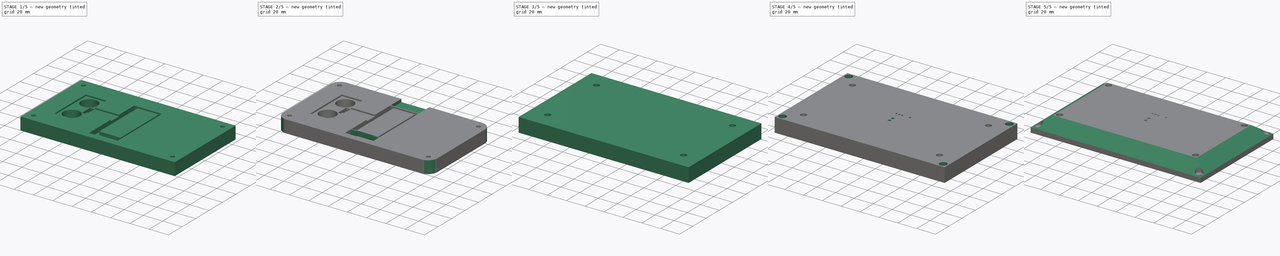
[diagram: build sequence overview — one tinted view per stage of 5, left to right]
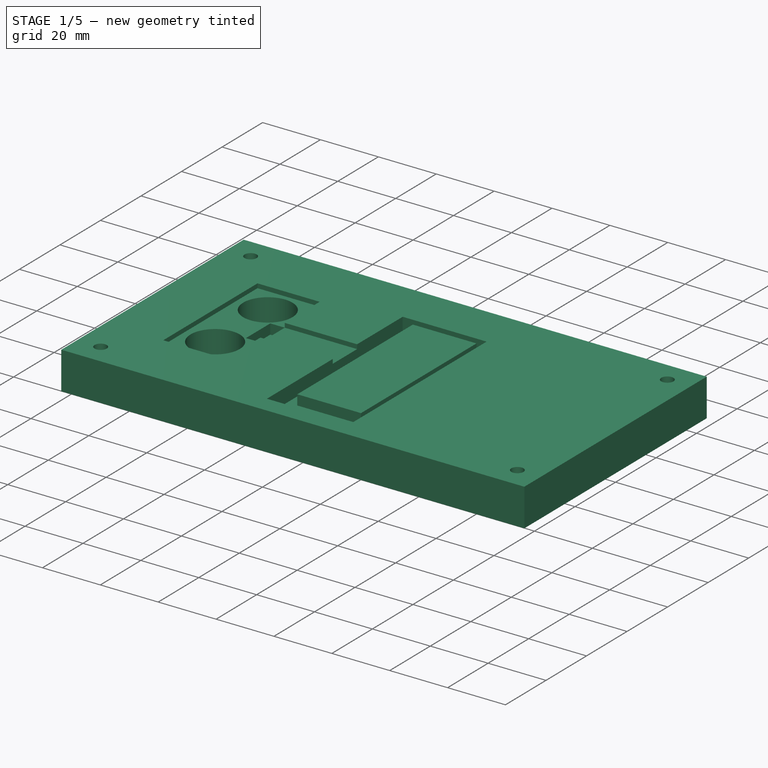
[diagram: stage 1 of 5 — iso view after this stage's code; geometry added in this stage tinted green]
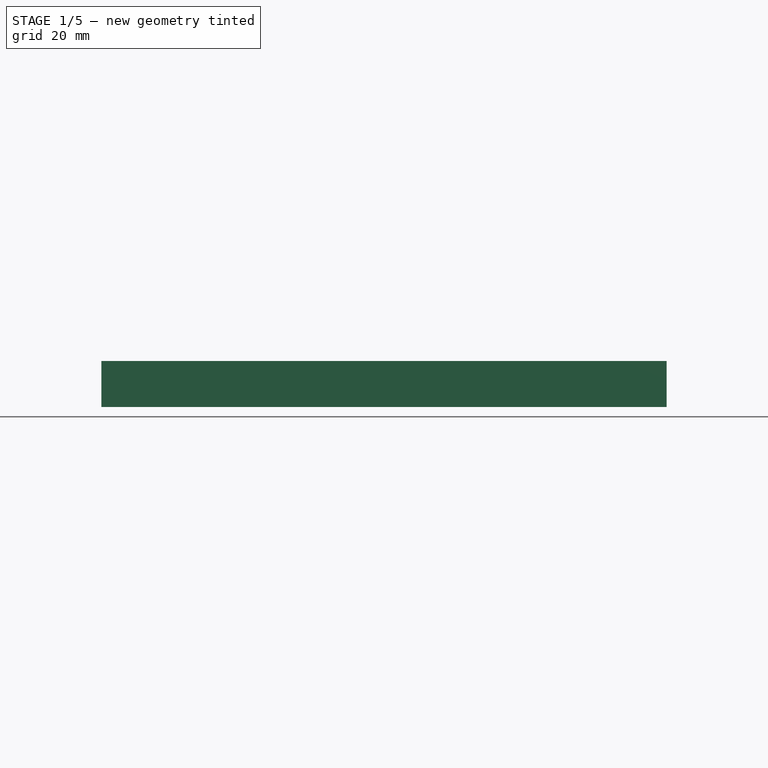
[diagram: stage 1 of 5 — front view after this stage's code; geometry added in this stage tinted green]
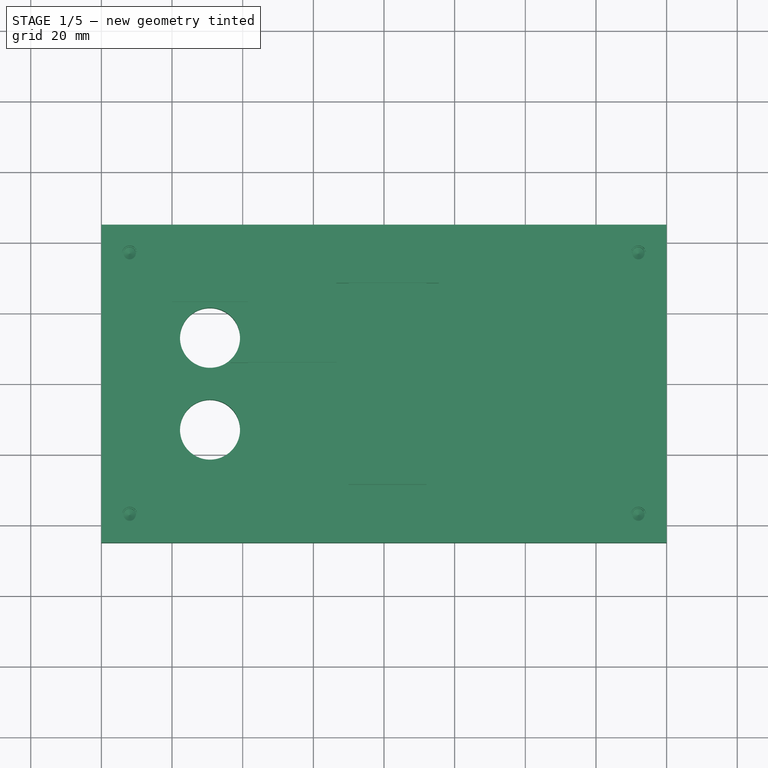
[diagram: stage 1 of 5 — top view after this stage's code; geometry added in this stage tinted green]
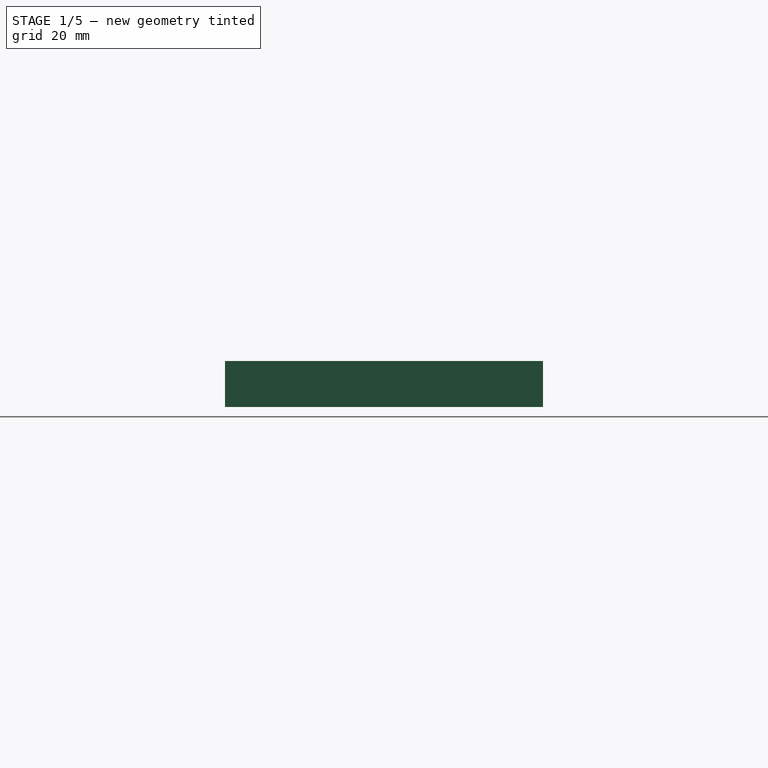
[diagram: stage 1 of 5 — right view after this stage's code; geometry added in this stage tinted green]
FCSTD DOCUMENT  (FreeCAD 1.0R39285 (Git))
Label: US-Ranging-Waterlevel
License: All rights reserved
LicenseURL: https://en.wikipedia.org/wiki/All_rights_reserved
objects: Sketcher::SketchObject×23, PartDesign::Pocket×15, PartDesign::Pad×4, PartDesign::Hole×3, PartDesign::SubShapeBinder×2, PartDesign::Body×2, PartDesign::Fillet×1, App::Part×1
note: 119 computed .brp shape members not serialized (recipe doc carries the construction recipe); baked Part::Feature solids carry a one-line shape summary decoded from their .brp

FEATURE [Sketcher::SketchObject] Sketch017
  ArcFitTolerance = 1e-06
  AttachmentSupport = -> [XY_Plane004]
  FullyConstrained = true
  MakeInternals = false
  MapMode = 5
  sketch-geometry (33):
    g0: LineSegment StartX=-140 StartY=23.25 StartZ=0 EndX=-140 EndY=-23.25 EndZ=0
    g1: LineSegment StartX=-140 StartY=-23.25 StartZ=0 EndX=-118.5 EndY=-23.25 EndZ=0
    g2: LineSegment StartX=-118.5 StartY=-23.25 StartZ=0 EndX=-118.5 EndY=23.25 EndZ=0
    g3: LineSegment StartX=-118.5 StartY=23.25 StartZ=0 EndX=-140 EndY=23.25 EndZ=0
    g4: Circle CenterX=-129.25 CenterY=-13 CenterZ=0 NormalX=0 NormalY=0 NormalZ=1 AngleXU=0 Radius=8.5
    g5: Circle CenterX=-129.25 CenterY=13 CenterZ=0 NormalX=0 NormalY=0 NormalZ=1 AngleXU=0 Radius=8.5
    g6: LineSegment [constr] StartX=-129.25 StartY=-13 StartZ=0 EndX=-129.25 EndY=13 EndZ=0
    g7: LineSegment [constr] StartX=-137.75 StartY=-21 StartZ=0 EndX=-120.75 EndY=-21 EndZ=0
    g8: LineSegment [constr] StartX=-120.75 StartY=-21 StartZ=0 EndX=-120.75 EndY=21 EndZ=0
    g9: LineSegment [constr] StartX=-120.75 StartY=21 StartZ=0 EndX=-137.75 EndY=21 EndZ=0
    g10: LineSegment [constr] StartX=-137.75 StartY=21 StartZ=0 EndX=-137.75 EndY=-21 EndZ=0
    g11: LineSegment [constr] StartX=-120.75 StartY=-21 StartZ=0 EndX=-120.75 EndY=-23.25 EndZ=0
    g12: LineSegment [constr] StartX=-120.75 StartY=-21 StartZ=0 EndX=-118.5 EndY=-21 EndZ=0
    g13: LineSegment [constr] StartX=-137.75 StartY=-21 StartZ=0 EndX=-140 EndY=-21 EndZ=0
    g14: LineSegment [constr] StartX=-120.75 StartY=21 StartZ=0 EndX=-120.75 EndY=23.25 EndZ=0
    g15: LineSegment StartX=-123.5 StartY=-6 StartZ=0 EndX=-93.5 EndY=-6 EndZ=0
    g16: LineSegment StartX=-93.5 StartY=-6 StartZ=0 EndX=-93.5 EndY=6 EndZ=0
    g17: LineSegment StartX=-93.5 StartY=6 StartZ=0 EndX=-123.5 EndY=6 EndZ=0
    g18: LineSegment StartX=-123.5 StartY=6 StartZ=0 EndX=-123.5 EndY=-6 EndZ=0
    g19: LineSegment StartX=-93.5 StartY=28.5 StartZ=0 EndX=-93.5 EndY=-28.5 EndZ=0
    g20: LineSegment StartX=-93.5 StartY=-28.5 StartZ=0 EndX=-64.5 EndY=-28.5 EndZ=0
    g21: LineSegment StartX=-64.5 StartY=-28.5 StartZ=0 EndX=-64.5 EndY=28.5 EndZ=0
    g22: LineSegment StartX=-64.5 StartY=28.5 StartZ=0 EndX=-93.5 EndY=28.5 EndZ=0
    g23: LineSegment StartX=-89 StartY=45 StartZ=0 EndX=-89 EndY=28.5 EndZ=0
    g24: LineSegment StartX=-89 StartY=28.5 StartZ=0 EndX=-69 EndY=28.5 EndZ=0
    g25: LineSegment StartX=-69 StartY=28.5 StartZ=0 EndX=-69 EndY=45 EndZ=0
    g26: LineSegment StartX=-69 StartY=45 StartZ=0 EndX=-89 EndY=45 EndZ=0
    g27: GeomPoint X=-79 Y=28.5 Z=0
    g28: LineSegment StartX=-89 StartY=-28.5 StartZ=0 EndX=-89 EndY=-45 EndZ=0
    g29: LineSegment StartX=-89 StartY=-45 StartZ=0 EndX=-69 EndY=-45 EndZ=0
    g30: LineSegment StartX=-69 StartY=-45 StartZ=0 EndX=-69 EndY=-28.5 EndZ=0
    g31: LineSegment StartX=-69 StartY=-28.5 StartZ=0 EndX=-89 EndY=-28.5 EndZ=0
    g32: GeomPoint X=-79 Y=-28.5 Z=0
  constraints (90):
    c: Coincident(g0,g1)
    c: Coincident(g1,g2)
    c: Coincident(g2,g3)
    c: Coincident(g3,g0)
    c: Vertical(g0)
    c: Vertical(g2)
    c: Horizontal(g1)
    c: Horizontal(g3)
    c: DistanceX(g2) = -118.5
    c: DistanceY(g2) = 23.25
    c: DistanceX(g3,g3) = 21.5
    c: DistanceY(g0,g0) = 46.5
    c: Diameter(g4) = 17
    c: Distance(g4,g2) = 10.75
    c: Coincident(g6,g4)
    c: Coincident(g6,g5)
    c: Vertical(g6)
    c: Equal(g5,g4)
    c: DistanceY(g6,g6) = 26
    c: Distance(g4,g1) = 10.25
    c: Coincident(g7,g8)
    c: Coincident(g8,g9)
    c: Coincident(g9,g10)
    c: Coincident(g10,g7)
    c: Horizontal(g7)
    c: Horizontal(g9)
    c: Vertical(g8)
    c: Vertical(g10)
    c: Coincident(g11,g7)
    c: PointOnObject(g11,g1)
    c: Vertical(g11)
    c: Coincident(g12,g7)
    c: PointOnObject(g12,g2)
    c: Horizontal(g12)
    c: Coincident(g13,g7)
    c: PointOnObject(g13,g0)
    c: Horizontal(g13)
    c: Coincident(g14,g8)
    c: PointOnObject(g14,g3)
    c: Vertical(g14)
    c: Equal(g14,g13)
    c: Equal(g13,g12)
    c: Equal(g12,g11)
    c: Distance(g11,g11) = 2.25
    c: Coincident(g15,g16)
    c: Coincident(g16,g17)
    c: Coincident(g17,g18)
    c: Coincident(g18,g15)
    c: Horizontal(g15)
    c: Horizontal(g17)
    c: Vertical(g16)
    c: Symmetric(g15,g17,g-1)
    c: DistanceY(g18,g18) = 12
    c: Distance(g15,g2) = 5
    c: Coincident(g19,g20)
    c: Coincident(g20,g21)
    c: Coincident(g21,g22)
    c: Coincident(g22,g19)
    c: Vertical(g21)
    c: Horizontal(g20)
    c: Horizontal(g22)
    c: Symmetric(g19,g19,g-1)
    c: DistanceX(g15,g15) = 30
    c: PointOnObject(g15,g19)
    c: DistanceY(g19,g19) = 57
    c: DistanceX(g22,g22) = 29
    c: Coincident(g23,g24)
    c: Coincident(g24,g25)
    c: Coincident(g25,g26)
    c: Coincident(g26,g23)
    c: Vertical(g23)
    c: Vertical(g25)
    c: Horizontal(g24)
    c: Horizontal(g26)
    c: Symmetric(g19,g21,g27)
    c: Symmetric(g23,g24,g27)
    c: Coincident(g28,g29)
    c: Coincident(g29,g30)
    c: Coincident(g30,g31)
    c: Coincident(g31,g28)
    c: Vertical(g28)
    c: Vertical(g30)
    c: Horizontal(g29)
    c: Horizontal(g31)
    c: Symmetric(g19,g20,g32)
    c: Symmetric(g28,g30,g32)
    c: DistanceX(g29,g29) = 20
    c: Equal(g23,g28)
    c: DistanceY(g29,g25) = 90
    c: DistanceX(g26,g26) = 20
FEATURE [Sketcher::SketchObject] Sketch018
  ArcFitTolerance = 1e-06
  AttachmentSupport = -> [XY_Plane004]
  ExternalGeometry = -> [Sketch017]
  FullyConstrained = true
  MakeInternals = false
  MapMode = 5
  sketch-geometry (4):
    g0: LineSegment StartX=-160 StartY=45 StartZ=0 EndX=-160 EndY=-45 EndZ=0
    g1: LineSegment StartX=-160 StartY=-45 StartZ=0 EndX=0 EndY=-45 EndZ=0
    g2: LineSegment StartX=0 StartY=-45 StartZ=0 EndX=0 EndY=45 EndZ=0
    g3: LineSegment StartX=0 StartY=45 StartZ=0 EndX=-160 EndY=45 EndZ=0
  constraints (12):
    c: Coincident(g0,g1)
    c: Coincident(g1,g2)
    c: Coincident(g2,g3)
    c: Coincident(g3,g0)
    c: Vertical(g0)
    c: Horizontal(g1)
    c: Horizontal(g3)
    c: PointOnObject(g1,g-2)
    c: Symmetric(g2,g1,g-1)
    c: PointOnObject(g-3,g3)
    c: DistanceX(g1,g1) = 160
    c: DistanceY(g0,g0) = 90
FEATURE [PartDesign::Pad] Pad004
  Direction = (0,0,1)
  Length = 13
  Length2 = 10
  Profile = -> Sketch018
  ReferenceAxis = -> Sketch018 [N_Axis]
  Refine = true
  Reversed = true
  Suppressed = false
  Type = 0
FEATURE [Sketcher::SketchObject] Sketch019
  ArcFitTolerance = 1e-06
  AttachmentSupport = -> [Pad004]
  ExternalGeometry = -> [Pad004]
  FullyConstrained = true
  MakeInternals = false
  MapMode = 5
  sketch-geometry (12):
    g0: LineSegment [constr] StartX=-152 StartY=37 StartZ=0 EndX=-152 EndY=-37 EndZ=0
    g1: LineSegment [constr] StartX=-152 StartY=-37 StartZ=0 EndX=-8 EndY=-37 EndZ=0
    g2: LineSegment [constr] StartX=-8 StartY=-37 StartZ=0 EndX=-8 EndY=37 EndZ=0
    g3: LineSegment [constr] StartX=-8 StartY=37 StartZ=0 EndX=-152 EndY=37 EndZ=0
    g4: LineSegment [constr] StartX=-152 StartY=37 StartZ=0 EndX=-152 EndY=45 EndZ=0
    g5: LineSegment [constr] StartX=-152 StartY=37 StartZ=0 EndX=-160 EndY=37 EndZ=0
    g6: LineSegment [constr] StartX=-8 StartY=-37 StartZ=0 EndX=-8 EndY=-45 EndZ=0
    g7: LineSegment [constr] StartX=-8 StartY=-37 StartZ=0 EndX=0 EndY=-37 EndZ=0
    g8: Circle CenterX=-152 CenterY=37 CenterZ=0 NormalX=0 NormalY=0 NormalZ=1 AngleXU=0 Radius=2.1
    g9: Circle CenterX=-8 CenterY=37 CenterZ=0 NormalX=0 NormalY=0 NormalZ=1 AngleXU=0 Radius=2.1
    g10: Circle CenterX=-152 CenterY=-37 CenterZ=0 NormalX=0 NormalY=0 NormalZ=1 AngleXU=0 Radius=2.1
    g11: Circle CenterX=-8 CenterY=-37 CenterZ=0 NormalX=0 NormalY=0 NormalZ=1 AngleXU=0 Radius=2.1
  constraints (32):
    c: Coincident(g0,g1)
    c: Coincident(g1,g2)
    c: Coincident(g2,g3)
    c: Coincident(g3,g0)
    c: Vertical(g0)
    c: Vertical(g2)
    c: Horizontal(g1)
    c: Horizontal(g3)
    c: Coincident(g4,g0)
    c: PointOnObject(g4,g-3)
    c: Vertical(g4)
    c: Coincident(g5,g0)
    c: PointOnObject(g5,g-5)
    c: Horizontal(g5)
    c: Coincident(g6,g1)
    c: Vertical(g6)
    c: Coincident(g7,g1)
    c: PointOnObject(g7,g-6)
    c: Horizontal(g7)
    c: PointOnObject(g6,g-4)
    c: Equal(g6,g7)
    c: Equal(g7,g4)
    c: Equal(g4,g5)
    c: Distance(g4,g4) = 8
    c: Coincident(g8,g0)
    c: Coincident(g9,g2)
    c: Coincident(g10,g0)
    c: Coincident(g11,g1)
    c: Equal(g11,g9)
    c: Equal(g9,g8)
    c: Equal(g8,g10)
    c: Diameter(g8) = 4.2
FEATURE [PartDesign::Hole] Hole005
  BaseFeature = -> Pad004
  CustomThreadClearance = 0
  Depth = 10
  DepthType = 0
  Diameter = 3.5
  DrillForDepth = false
  DrillPoint = 1
  DrillPointAngle = 118
  HoleCutCountersinkAngle = 90
  HoleCutCustomValues = false
  HoleCutDepth = 5.2
  HoleCutDiameter = 4.2
  HoleCutType = 1
  ModelThread = false
  Profile = -> Sketch019
  Refine = true
  Suppressed = false
  Tapered = false
  TaperedAngle = 90
  ThreadClass = 0
  ThreadDepth = 10
  ThreadDepthType = 0
  ThreadDirection = 0
  ThreadFit = 0
  ThreadSize = 0
  ThreadType = 0
  Threaded = false
  UseCustomThreadClearance = false
FEATURE [Sketcher::SketchObject] Sketch020
  ArcFitTolerance = 1e-06
  AttachmentSupport = -> [Hole005]
  ExternalGeometry = -> [Sketch017]
  FullyConstrained = true
  MakeInternals = false
  MapMode = 5
  sketch-geometry (2):
    g0: Circle CenterX=-129.25 CenterY=13 CenterZ=0 NormalX=0 NormalY=0 NormalZ=1 AngleXU=0 Radius=8.5
    g1: Circle CenterX=-129.25 CenterY=-13 CenterZ=0 NormalX=0 NormalY=0 NormalZ=1 AngleXU=0 Radius=8.5
  constraints (4):
    c: Coincident(g0,g-3)
    c: Coincident(g1,g-4)
    c: Equal(g0,g1)
    c: Equal(g1,g-3)
FEATURE [PartDesign::Pocket] Pocket008
  BaseFeature = -> Hole005
  Direction = (0,0,-1)
  Length = 5
  Length2 = 5
  Profile = -> Sketch020
  ReferenceAxis = -> Sketch020 [N_Axis]
  Refine = true
  Suppressed = false
  Type = 1
FEATURE [Sketcher::SketchObject] Sketch021
  ArcFitTolerance = 1e-06
  AttachmentSupport = -> [Pocket008]
  ExternalGeometry = -> [Sketch017]
  FullyConstrained = true
  MakeInternals = false
  MapMode = 5
  sketch-geometry (16):
    g0: LineSegment StartX=-123.5 StartY=6 StartZ=0 EndX=-123.5 EndY=-6 EndZ=0
    g1: LineSegment StartX=-123.5 StartY=-6 StartZ=0 EndX=-118.5 EndY=-6 EndZ=0
    g2: LineSegment StartX=-118.5 StartY=-6 StartZ=0 EndX=-118.5 EndY=6 EndZ=0
    g3: LineSegment StartX=-118.5 StartY=6 StartZ=0 EndX=-123.5 EndY=6 EndZ=0
    g4: LineSegment StartX=-93.5 StartY=28.5 StartZ=0 EndX=-93.5 EndY=-28.5 EndZ=0
    g5: LineSegment StartX=-93.5 StartY=-28.5 StartZ=0 EndX=-90 EndY=-28.5 EndZ=0
    g6: LineSegment StartX=-90 StartY=-28.5 StartZ=0 EndX=-90 EndY=28.5 EndZ=0
    g7: LineSegment StartX=-90 StartY=28.5 StartZ=0 EndX=-93.5 EndY=28.5 EndZ=0
    g8: LineSegment StartX=-64.5 StartY=28.5 StartZ=0 EndX=-68 EndY=28.5 EndZ=0
    g9: LineSegment StartX=-68 StartY=28.5 StartZ=0 EndX=-68 EndY=-28.5 EndZ=0
    g10: LineSegment StartX=-68 StartY=-28.5 StartZ=0 EndX=-64.5 EndY=-28.5 EndZ=0
    g11: LineSegment StartX=-64.5 StartY=-28.5 StartZ=0 EndX=-64.5 EndY=28.5 EndZ=0
    g12: LineSegment StartX=-93.5 StartY=-28.5 StartZ=0 EndX=-93.5 EndY=-38.5 EndZ=0
    g13: LineSegment StartX=-93.5 StartY=-38.5 StartZ=0 EndX=-64.5 EndY=-38.5 EndZ=0
    g14: LineSegment StartX=-64.5 StartY=-38.5 StartZ=0 EndX=-64.5 EndY=-28.5 EndZ=0
    g15: LineSegment StartX=-64.5 StartY=-28.5 StartZ=0 EndX=-93.5 EndY=-28.5 EndZ=0
  constraints (43):
    c: Coincident(g0,g1)
    c: Coincident(g1,g2)
    c: Coincident(g2,g3)
    c: Coincident(g3,g0)
    c: Vertical(g0)
    c: Vertical(g2)
    c: Horizontal(g1)
    c: Horizontal(g3)
    c: Coincident(g0,g-3)
    c: PointOnObject(g1,g-5)
    c: PointOnObject(g1,g-4)
    c: Coincident(g4,g5)
    c: Coincident(g5,g6)
    c: Coincident(g6,g7)
    c: Coincident(g7,g4)
    c: Vertical(g4)
    c: Vertical(g6)
    c: Horizontal(g5)
    c: Horizontal(g7)
    c: Coincident(g4,g-7)
    c: PointOnObject(g5,g-9)
    c: Coincident(g8,g9)
    c: Coincident(g9,g10)
    c: Coincident(g10,g11)
    c: Coincident(g11,g8)
    c: Horizontal(g8)
    c: Horizontal(g10)
    c: Vertical(g9)
    c: Vertical(g11)
    c: Coincident(g8,g-8)
    c: PointOnObject(g9,g-9)
    c: Equal(g7,g8)
    c: Distance(g7,g7) = 3.5
    c: Coincident(g12,g13)
    c: Coincident(g13,g14)
    c: Coincident(g14,g15)
    c: Coincident(g15,g12)
    c: Vertical(g12)
    c: Vertical(g14)
    c: Horizontal(g13)
    c: Coincident(g12,g4)
    c: Coincident(g14,g10)
    c: DistanceY(g14,g14) = 10
FEATURE [PartDesign::Pocket] Pocket009
  BaseFeature = -> Pocket008
  Direction = (0,0,-1)
  Length = 5
  Length2 = 5
  Profile = -> Sketch021
  ReferenceAxis = -> Sketch021 [N_Axis]
  Refine = true
  Suppressed = false
  Type = 0
FEATURE [Sketcher::SketchObject] Sketch022
  ArcFitTolerance = 1e-06
  AttachmentSupport = -> [Pocket009]
  ExternalGeometry = -> [Sketch017]
  FullyConstrained = true
  MakeInternals = false
  MapMode = 5
  sketch-geometry (12):
    g0: LineSegment StartX=-140 StartY=23.25 StartZ=0 EndX=-140 EndY=-23.25 EndZ=0
    g1: LineSegment StartX=-140 StartY=-23.25 StartZ=0 EndX=-118.5 EndY=-23.25 EndZ=0
    g2: LineSegment StartX=-118.5 StartY=-23.25 StartZ=0 EndX=-118.5 EndY=23.25 EndZ=0
    g3: LineSegment StartX=-118.5 StartY=23.25 StartZ=0 EndX=-140 EndY=23.25 EndZ=0
    g4: LineSegment StartX=-93.5 StartY=28.5 StartZ=0 EndX=-93.5 EndY=-28.5 EndZ=0
    g5: LineSegment StartX=-93.5 StartY=-28.5 StartZ=0 EndX=-64.5 EndY=-28.5 EndZ=0
    g6: LineSegment StartX=-64.5 StartY=-28.5 StartZ=0 EndX=-64.5 EndY=28.5 EndZ=0
    g7: LineSegment StartX=-64.5 StartY=28.5 StartZ=0 EndX=-93.5 EndY=28.5 EndZ=0
    g8: LineSegment StartX=-93.5 StartY=6 StartZ=0 EndX=-123.5 EndY=6 EndZ=0
    g9: LineSegment StartX=-123.5 StartY=6 StartZ=0 EndX=-123.5 EndY=-6 EndZ=0
    g10: LineSegment StartX=-123.5 StartY=-6 StartZ=0 EndX=-93.5 EndY=-6 EndZ=0
    g11: LineSegment StartX=-93.5 StartY=-6 StartZ=0 EndX=-93.5 EndY=6 EndZ=0
  constraints (30):
    c: Coincident(g0,g1)
    c: Coincident(g1,g2)
    c: Coincident(g2,g3)
    c: Coincident(g3,g0)
    c: Vertical(g0)
    c: Vertical(g2)
    c: Horizontal(g1)
    c: Horizontal(g3)
    c: Coincident(g0,g-3)
    c: Coincident(g1,g-4)
    c: Coincident(g4,g5)
    c: Coincident(g5,g6)
    c: Coincident(g6,g7)
    c: Coincident(g7,g4)
    c: Vertical(g4)
    c: Vertical(g6)
    c: Horizontal(g5)
    c: Horizontal(g7)
    c: Coincident(g4,g-5)
    c: Coincident(g5,g-6)
    c: Coincident(g8,g9)
    c: Coincident(g9,g10)
    c: Coincident(g10,g11)
    c: Coincident(g11,g8)
    c: Horizontal(g8)
    c: Horizontal(g10)
    c: Vertical(g9)
    c: Vertical(g11)
    c: Coincident(g8,g-7)
    c: Coincident(g9,g-8)
FEATURE [PartDesign::Pocket] Pocket010
  BaseFeature = -> Pocket009
  Direction = (0,0,-1)
  Length = 1.5
  Length2 = 5
  Profile = -> Sketch022
  ReferenceAxis = -> Sketch022 [N_Axis]
  Refine = true
  Suppressed = false
  Type = 0
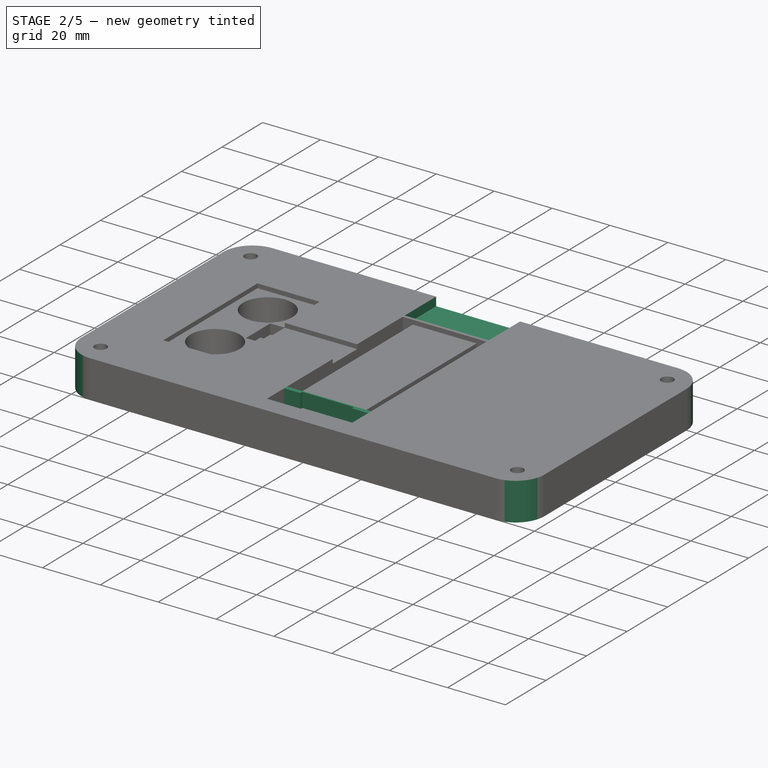
[diagram: stage 2 of 5 — iso view after this stage's code; geometry added in this stage tinted green]
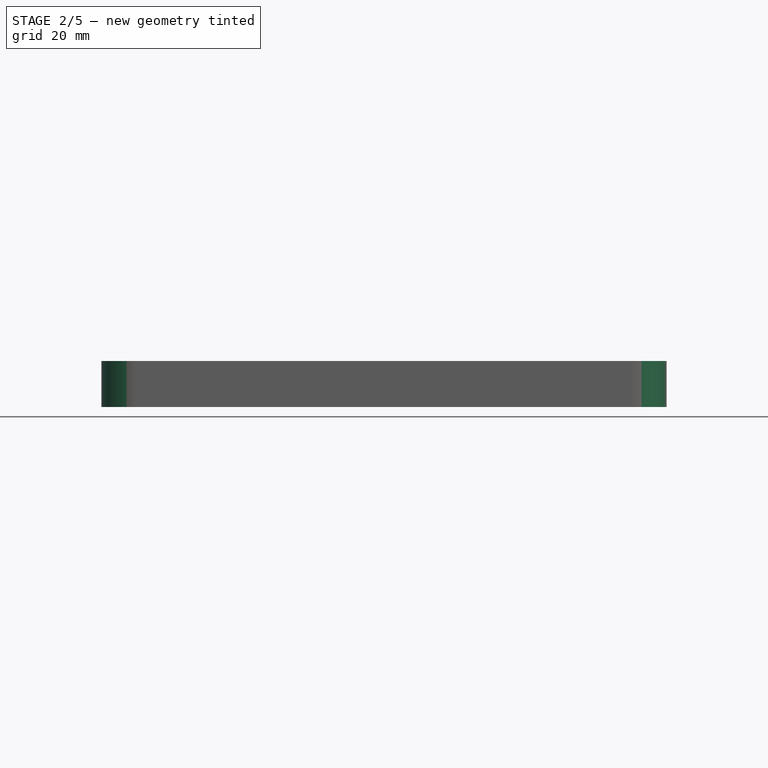
[diagram: stage 2 of 5 — front view after this stage's code; geometry added in this stage tinted green]
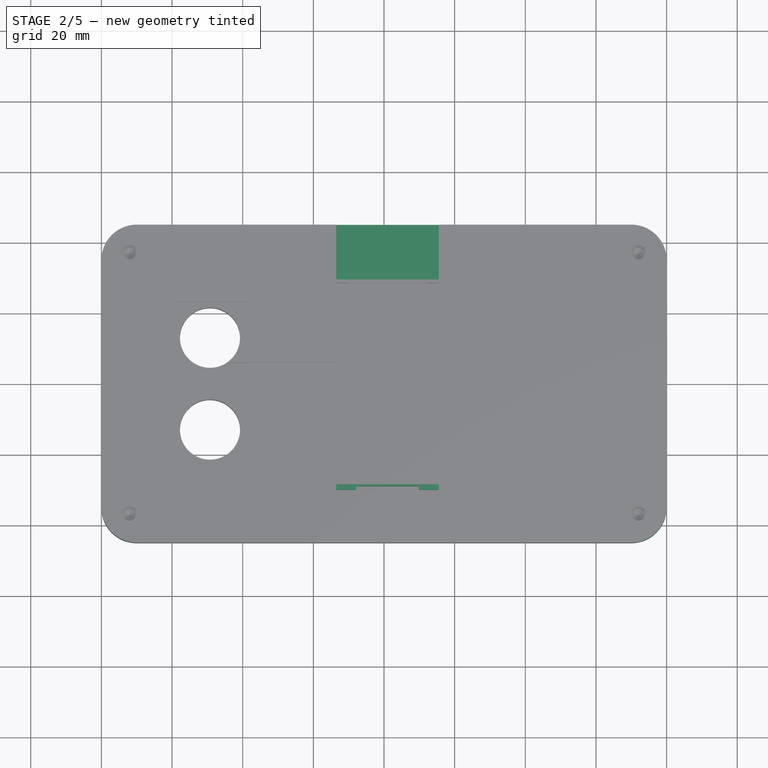
[diagram: stage 2 of 5 — top view after this stage's code; geometry added in this stage tinted green]
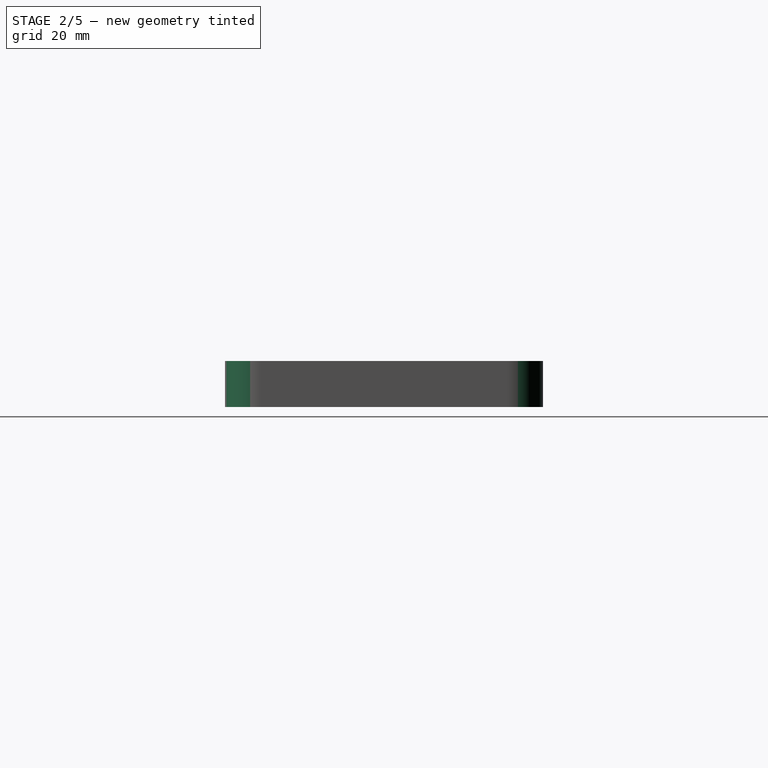
[diagram: stage 2 of 5 — right view after this stage's code; geometry added in this stage tinted green]
FEATURE [Sketcher::SketchObject] Sketch031
  ArcFitTolerance = 1e-06
  AttachmentSupport = -> [Pocket010]
  ExternalGeometry = -> [Pocket010]
  FullyConstrained = true
  MakeInternals = false
  MapMode = 5
  Placement = pos=(0,0,-13) rot=(1,0,0;3.14159rad)
  sketch-geometry (2):
    g0: Circle CenterX=-129.25 CenterY=9e-16 CenterZ=0 NormalX=0 NormalY=0 NormalZ=1 AngleXU=0 Radius=22.5
    g1: Circle CenterX=-129.25 CenterY=9e-16 CenterZ=0 NormalX=0 NormalY=0 NormalZ=1 AngleXU=0 Radius=25.5
  constraints (4):
    c: Coincident(g1,g0)
    c: Diameter(g1) = 51
    c: Diameter(g0) = 45
    c: Symmetric(g-3,g-4,g0)
FEATURE [PartDesign::Pocket] Pocket016
  BaseFeature = -> Pocket010
  Direction = (0,0,1)
  Length = 7
  Length2 = 5
  Profile = -> Sketch031
  ReferenceAxis = -> Sketch031 [N_Axis]
  Refine = true
  Suppressed = false
  Type = 0
FEATURE [Sketcher::SketchObject] Sketch033
  ArcFitTolerance = 1e-06
  AttachmentSupport = -> [Pocket016]
  ExternalGeometry = -> [Pocket016]
  FullyConstrained = true
  MakeInternals = false
  MapMode = 5
  Placement = pos=(0,0,-5) rot=(0,0,1;0rad)
  sketch-geometry (9):
    g0: LineSegment StartX=-87.9 StartY=-29 StartZ=0 EndX=-70.1 EndY=-29 EndZ=0
    g1: LineSegment StartX=-64.5 StartY=-28.5 StartZ=0 EndX=-93.5 EndY=-28.5 EndZ=0
    g2: LineSegment StartX=-93.5 StartY=-28.5 StartZ=0 EndX=-93.5 EndY=-30 EndZ=0
    g3: LineSegment StartX=-93.5 StartY=-30 StartZ=0 EndX=-87.9 EndY=-30 EndZ=0
    g4: LineSegment StartX=-87.9 StartY=-30 StartZ=0 EndX=-87.9 EndY=-29 EndZ=0
    g5: LineSegment StartX=-70.1 StartY=-29 StartZ=0 EndX=-70.1 EndY=-30 EndZ=0
    g6: LineSegment StartX=-70.1 StartY=-30 StartZ=0 EndX=-64.5 EndY=-30 EndZ=0
    g7: LineSegment StartX=-64.5 StartY=-30 StartZ=0 EndX=-64.5 EndY=-28.5 EndZ=0
    g8: LineSegment [constr] StartX=-87.9 StartY=-30 StartZ=0 EndX=-70.1 EndY=-30 EndZ=0
  constraints (26):
    c: Horizontal(g0)
    c: Horizontal(g1)
    c: PointOnObject(g1,g-3)
    c: PointOnObject(g-5,g1)
    c: Coincident(g2,g3)
    c: Coincident(g3,g4)
    c: Horizontal(g3)
    c: Vertical(g4)
    c: PointOnObject(g2,g-3)
    c: DistanceX(g3,g3) = 5.6
    c: Coincident(g2,g1)
    c: Coincident(g5,g6)
    c: Coincident(g6,g7)
    c: Vertical(g5)
    c: Horizontal(g6)
    c: PointOnObject(g6,g-4)
    c: Coincident(g0,g5)
    c: Coincident(g7,g1)
    c: PointOnObject(g1,g-4)
    c: Equal(g3,g6)
    c: Distance(g0,g1) = 0.5
    c: Distance(g4,g4) = 1
    c: Coincident(g0,g4)
    c: Coincident(g8,g3)
    c: Coincident(g8,g5)
    c: Horizontal(g8)
FEATURE [PartDesign::Pad] Pad
  BaseFeature = -> Pocket016
  Direction = (0,0,1)
  Length = 10
  Length2 = 10
  Profile = -> Sketch033
  ReferenceAxis = -> Sketch033 [N_Axis]
  Refine = true
  Suppressed = false
  Type = 3
  UpToFace = -> Pocket016 [Face6]
FEATURE [PartDesign::Fillet] Fillet
  Base = -> Pad [Edge74,Edge77,Edge71,Edge70]
  BaseFeature = -> Pad
  Radius = 10
  Refine = true
  SupportTransform = false
  Suppressed = false
  UseAllEdges = false
FEATURE [Sketcher::SketchObject] Sketch034
  ArcFitTolerance = 1e-06
  AttachmentSupport = -> [Pad]
  ExternalGeometry = -> [Pad]
  FullyConstrained = true
  MakeInternals = false
  MapMode = 5
  sketch-geometry (6):
    g0: LineSegment StartX=-93.5 StartY=29.5 StartZ=0 EndX=-64.5 EndY=29.5 EndZ=0
    g1: LineSegment StartX=-64.5 StartY=29.5 StartZ=0 EndX=-64.5 EndY=45 EndZ=0
    g2: LineSegment StartX=-64.5 StartY=45 StartZ=0 EndX=-93.5 EndY=45 EndZ=0
    g3: LineSegment StartX=-93.5 StartY=45 StartZ=0 EndX=-93.5 EndY=29.5 EndZ=0
    g4: LineSegment [constr] StartX=-93.5 StartY=28.5 StartZ=0 EndX=-93.5 EndY=29.5 EndZ=0
    g5: LineSegment [constr] StartX=-64.5 StartY=29.5 StartZ=0 EndX=-64.5 EndY=28.5 EndZ=0
  constraints (16):
    c: Coincident(g0,g1)
    c: Coincident(g1,g2)
    c: Coincident(g2,g3)
    c: Coincident(g3,g0)
    c: Horizontal(g0)
    c: Horizontal(g2)
    c: Vertical(g1)
    c: Vertical(g3)
    c: Coincident(g4,g-3)
    c: Coincident(g4,g0)
    c: Coincident(g5,g0)
    c: Coincident(g5,g-3)
    c: Vertical(g5)
    c: Vertical(g4)
    c: PointOnObject(g2,g-4)
    c: Distance(g4,g4) = 1
FEATURE [PartDesign::Pocket] Pocket018
  BaseFeature = -> Fillet
  Direction = (0,0,-1)
  Length = 3
  Length2 = 5
  Profile = -> Sketch034
  ReferenceAxis = -> Sketch034 [N_Axis]
  Refine = true
  Suppressed = false
  Type = 0
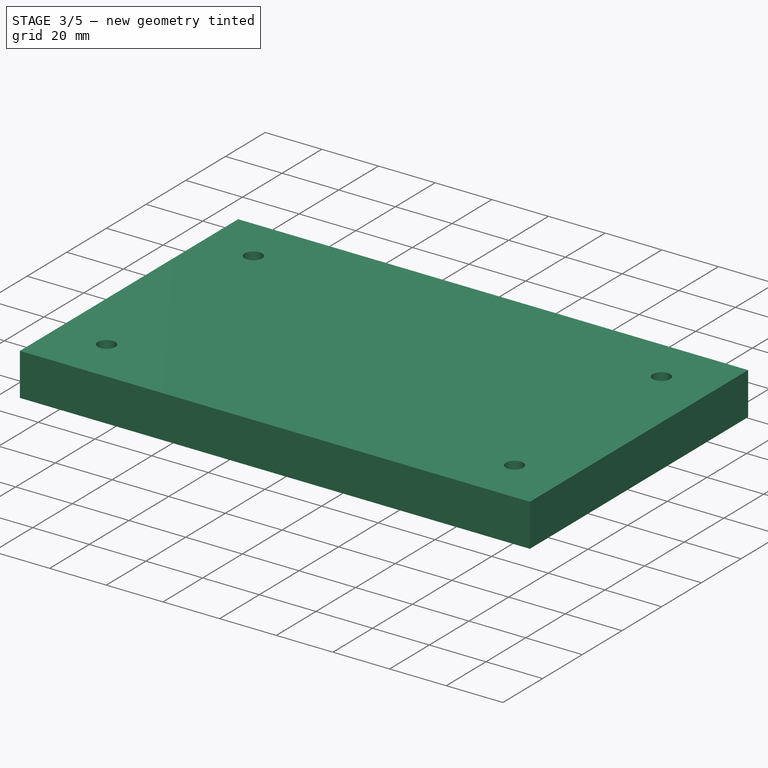
[diagram: stage 3 of 5 — iso view after this stage's code; geometry added in this stage tinted green]
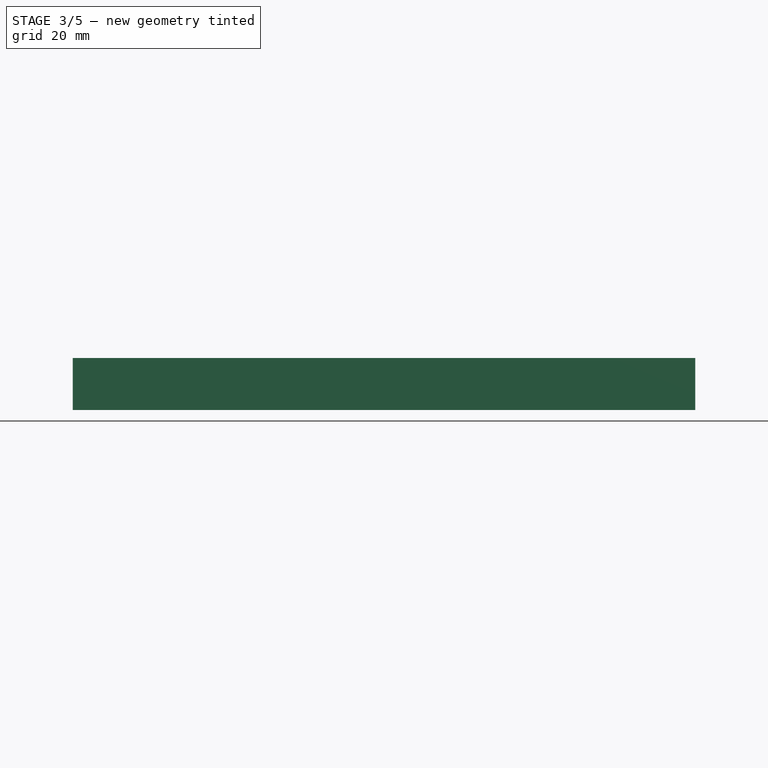
[diagram: stage 3 of 5 — front view after this stage's code; geometry added in this stage tinted green]
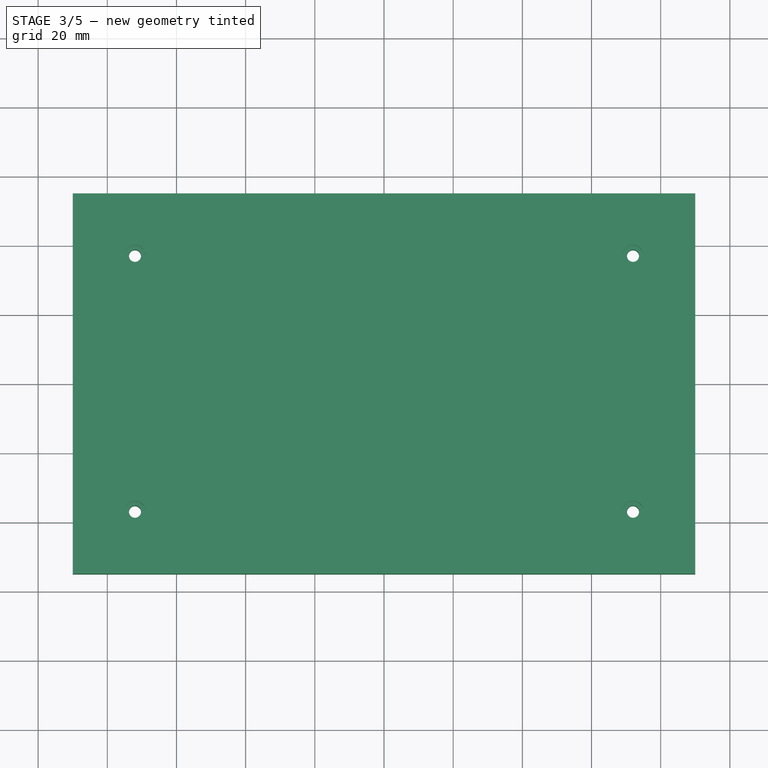
[diagram: stage 3 of 5 — top view after this stage's code; geometry added in this stage tinted green]
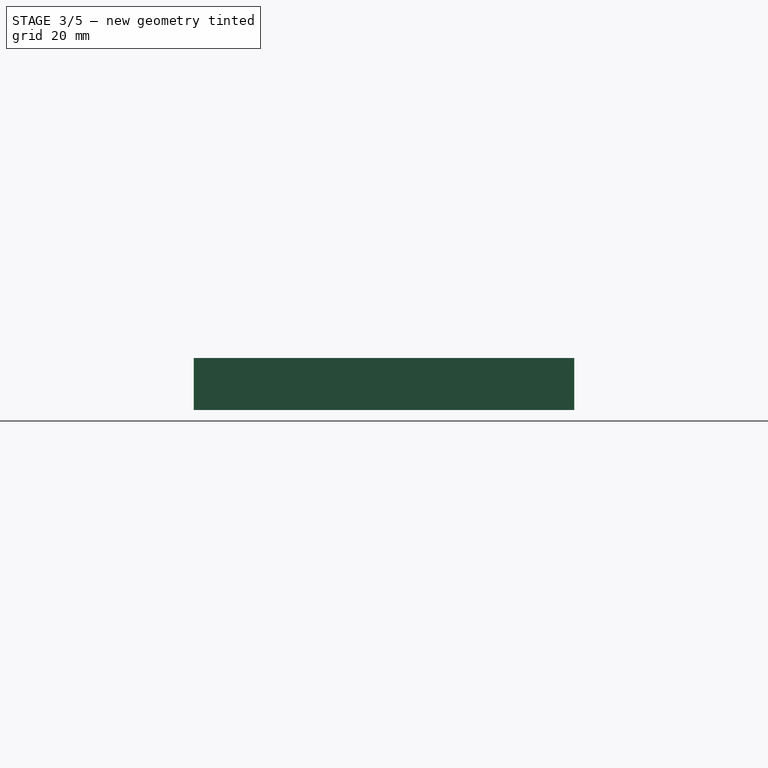
[diagram: stage 3 of 5 — right view after this stage's code; geometry added in this stage tinted green]
FEATURE [PartDesign::SubShapeBinder] Binder001
  BindCopyOnChange = 0
  BindMode = 0
  ClaimChildren = false
  Context = -> Part001 [Body003.Binder001.]
  Fuse = false
  MakeFace = true
  OffsetFill = false
  OffsetIntersection = false
  OffsetJoinType = 0
  OffsetOpenResult = false
  PartialLoad = false
  Refine = true
  Relative = true
  Support = -> [Body002[Pocket010.Face6]]
  _Version = 2
FEATURE [Sketcher::SketchObject] Sketch023
  ArcFitTolerance = 1e-06
  AttachmentSupport = -> [Binder001]
  ExternalGeometry = -> [Binder001]
  FullyConstrained = true
  MakeInternals = false
  MapMode = 5
  sketch-geometry (8):
    g0: LineSegment StartX=-170 StartY=55 StartZ=0 EndX=-170 EndY=-55 EndZ=0
    g1: LineSegment StartX=-170 StartY=-55 StartZ=0 EndX=10 EndY=-55 EndZ=0
    g2: LineSegment StartX=10 StartY=-55 StartZ=0 EndX=10 EndY=55 EndZ=0
    g3: LineSegment StartX=10 StartY=55 StartZ=0 EndX=-170 EndY=55 EndZ=0
    g4: LineSegment [constr] StartX=-160 StartY=45 StartZ=0 EndX=-160 EndY=55 EndZ=0
    g5: LineSegment [constr] StartX=-160 StartY=45 StartZ=0 EndX=-170 EndY=45 EndZ=0
    g6: LineSegment [constr] StartX=0 StartY=-45 StartZ=0 EndX=10 EndY=-45 EndZ=0
    g7: LineSegment [constr] StartX=0 StartY=-45 StartZ=0 EndX=0 EndY=-55 EndZ=0
  constraints (24):
    c: Coincident(g0,g1)
    c: Coincident(g1,g2)
    c: Coincident(g2,g3)
    c: Coincident(g3,g0)
    c: Vertical(g0)
    c: Vertical(g2)
    c: Horizontal(g1)
    c: Horizontal(g3)
    c: Coincident(g4,g-3)
    c: PointOnObject(g4,g3)
    c: Vertical(g4)
    c: Coincident(g5,g4)
    c: PointOnObject(g5,g0)
    c: Horizontal(g5)
    c: Coincident(g6,g-4)
    c: Horizontal(g6)
    c: Coincident(g7,g6)
    c: PointOnObject(g7,g1)
    c: Vertical(g7)
    c: Equal(g6,g7)
    c: Equal(g7,g4)
    c: Equal(g4,g5)
    c: Distance(g4,g4) = 10
    c: PointOnObject(g6,g2)
FEATURE [PartDesign::Pad] Pad005
  Direction = (0,0,1)
  Length = 15
  Length2 = 10
  Profile = -> Sketch023
  ReferenceAxis = -> Sketch023 [N_Axis]
  Refine = true
  Suppressed = false
  Type = 0
FEATURE [Sketcher::SketchObject] Sketch024
  ArcFitTolerance = 1e-06
  AttachmentSupport = -> [Pad005]
  ExternalGeometry = -> [Binder001]
  FullyConstrained = true
  MakeInternals = false
  MapMode = 5
  Placement = pos=(0,0,15) rot=(0,0,1;0rad)
  sketch-geometry (4):
    g0: Circle CenterX=-152 CenterY=37 CenterZ=0 NormalX=0 NormalY=0 NormalZ=1 AngleXU=0 Radius=1.85
    g1: Circle CenterX=-152 CenterY=-37 CenterZ=0 NormalX=0 NormalY=0 NormalZ=1 AngleXU=0 Radius=1.85
    g2: Circle CenterX=-8 CenterY=-37 CenterZ=0 NormalX=0 NormalY=0 NormalZ=1 AngleXU=0 Radius=1.85
    g3: Circle CenterX=-8 CenterY=37 CenterZ=0 NormalX=0 NormalY=0 NormalZ=1 AngleXU=0 Radius=1.85
  constraints (8):
    c: Coincident(g0,g-3)
    c: Coincident(g1,g-4)
    c: Coincident(g2,g-6)
    c: Coincident(g3,g-5)
    c: Equal(g0,g3)
    c: Equal(g3,g2)
    c: Equal(g2,g1)
    c: Diameter(g0) = 3.7
FEATURE [PartDesign::Hole] Hole006
  BaseFeature = -> Pad005
  CustomThreadClearance = 0
  Depth = 372.059
  DepthType = 1
  Diameter = 3.5
  DrillForDepth = false
  DrillPoint = 1
  DrillPointAngle = 118
  HoleCutCountersinkAngle = 150
  HoleCutCustomValues = false
  HoleCutDepth = 3.2
  HoleCutDiameter = 6.1
  HoleCutType = 1
  ModelThread = false
  Profile = -> Sketch024
  Refine = true
  Suppressed = false
  Tapered = false
  TaperedAngle = 90
  ThreadClass = 0
  ThreadDepth = 372.059
  ThreadDepthType = 0
  ThreadDirection = 0
  ThreadFit = 0
  ThreadSize = 0
  ThreadType = 0
  Threaded = false
  UseCustomThreadClearance = false
FEATURE [Sketcher::SketchObject] Sketch025
  ArcFitTolerance = 1e-06
  AttachmentSupport = -> [Hole006]
  ExternalGeometry = -> [Hole006]
  FullyConstrained = true
  MakeInternals = false
  MapMode = 5
  Placement = pos=(0,0,11.8) rot=(0,0,1;0rad)
  sketch-geometry (16):
    g0: ArcOfCircle CenterX=-152 CenterY=-37 CenterZ=0 NormalX=0 NormalY=0 NormalZ=1 AngleXU=0 Radius=3.05 StartAngle=0.959694 EndAngle=2.1819
    g1: ArcOfCircle CenterX=-152 CenterY=-37 CenterZ=0 NormalX=0 NormalY=0 NormalZ=1 AngleXU=0 Radius=3.05 StartAngle=4.10129 EndAngle=5.32349
    g2: LineSegment StartX=-153.75 StartY=-34.502 StartZ=0 EndX=-153.75 EndY=-39.498 EndZ=0
    g3: LineSegment StartX=-150.25 StartY=-34.502 StartZ=0 EndX=-150.25 EndY=-39.498 EndZ=0
    g4: ArcOfCircle CenterX=-8 CenterY=37 CenterZ=0 NormalX=0 NormalY=0 NormalZ=1 AngleXU=0 Radius=3.05 StartAngle=0.959694 EndAngle=2.1819
    g5: ArcOfCircle CenterX=-8 CenterY=37 CenterZ=0 NormalX=0 NormalY=0 NormalZ=1 AngleXU=0 Radius=3.05 StartAngle=4.10129 EndAngle=5.32349
    g6: LineSegment StartX=-9.75 StartY=39.498 StartZ=0 EndX=-9.75 EndY=34.502 EndZ=0
    g7: LineSegment StartX=-6.25 StartY=39.498 StartZ=0 EndX=-6.25 EndY=34.502 EndZ=0
    g8: ArcOfCircle CenterX=-8 CenterY=-37 CenterZ=0 NormalX=0 NormalY=0 NormalZ=1 AngleXU=0 Radius=3.05 StartAngle=0.959694 EndAngle=2.1819
    g9: ArcOfCircle CenterX=-8 CenterY=-37 CenterZ=0 NormalX=0 NormalY=0 NormalZ=1 AngleXU=0 Radius=3.05 StartAngle=4.10129 EndAngle=5.32349
    g10: LineSegment StartX=-9.75 StartY=-34.502 StartZ=0 EndX=-9.75 EndY=-39.498 EndZ=0
    g11: LineSegment StartX=-6.25 StartY=-39.498 StartZ=0 EndX=-6.25 EndY=-34.502 EndZ=0
    g12: ArcOfCircle CenterX=-152 CenterY=37 CenterZ=0 NormalX=0 NormalY=0 NormalZ=1 AngleXU=0 Radius=3.05 StartAngle=0.959694 EndAngle=2.1819
    g13: ArcOfCircle CenterX=-152 CenterY=37 CenterZ=0 NormalX=0 NormalY=0 NormalZ=1 AngleXU=0 Radius=3.05 StartAngle=4.10129 EndAngle=5.32349
    g14: LineSegment StartX=-153.75 StartY=39.498 StartZ=0 EndX=-153.75 EndY=34.502 EndZ=0
    g15: LineSegment StartX=-150.25 StartY=34.502 StartZ=0 EndX=-150.25 EndY=39.498 EndZ=0
  constraints (48):
    c: Coincident(g0,g-4)
    c: Coincident(g2,g0)
    c: Coincident(g2,g1)
    c: Coincident(g3,g0)
    c: Coincident(g3,g1)
    c: Tangent(g-4,g2)
    c: Tangent(g-4,g3)
    c: Coincident(g0,g1)
    c: PointOnObject(g0,g-3)
    c: Vertical(g2)
    c: PointOnObject(g1,g-3)
    c: Vertical(g3)
    c: Coincident(g4,g-8)
    c: Coincident(g5,g4)
    c: Coincident(g6,g4)
    c: Coincident(g6,g5)
    c: Coincident(g7,g4)
    c: Coincident(g7,g5)
    c: Vertical(g7)
    c: PointOnObject(g4,g-7)
    c: PointOnObject(g5,g-7)
    c: Vertical(g6)
    c: Tangent(g-8,g6)
    c: Tangent(g7,g-8)
    c: Coincident(g8,g-10)
    c: Coincident(g9,g8)
    c: Coincident(g10,g8)
    c: Coincident(g10,g9)
    c: Vertical(g10)
    c: Coincident(g11,g9)
    c: Coincident(g11,g8)
    c: Vertical(g11)
    c: PointOnObject(g8,g-9)
    c: PointOnObject(g9,g-9)
    c: Tangent(g10,g-10)
    c: Tangent(g11,g-10)
    c: Coincident(g12,g-6)
    c: Coincident(g13,g12)
    c: Coincident(g14,g12)
    c: Coincident(g14,g13)
    c: Coincident(g15,g13)
    c: Coincident(g15,g12)
    c: Vertical(g15)
    c: Vertical(g14)
    c: Tangent(g-6,g14)
    c: Tangent(g15,g-6)
    c: PointOnObject(g12,g-5)
    c: PointOnObject(g13,g-5)
FEATURE [PartDesign::Pocket] Pocket011
  BaseFeature = -> Hole006
  Direction = (0,0,-1)
  Length = 0.2
  Length2 = 5
  Profile = -> Sketch025
  ReferenceAxis = -> Sketch025 [N_Axis]
  Refine = true
  Suppressed = false
  Type = 0
FEATURE [Sketcher::SketchObject] Sketch035
  ArcFitTolerance = 1e-06
  AttachmentSupport = -> [Pocket018]
  ExternalGeometry = -> [Pocket018]
  FullyConstrained = true
  MakeInternals = false
  MapMode = 5
  Placement = pos=(0,0,-1.5) rot=(0,0,1;0rad)
  sketch-geometry (4):
    g0: ArcOfCircle CenterX=-137.4 CenterY=4.2 CenterZ=0 NormalX=0 NormalY=0 NormalZ=1 AngleXU=0 Radius=2.6 StartAngle=6.378e-13 EndAngle=3.14159
    g1: ArcOfCircle CenterX=-137.4 CenterY=-4.2 CenterZ=0 NormalX=0 NormalY=0 NormalZ=1 AngleXU=0 Radius=2.6 StartAngle=3.14159 EndAngle=6.28319
    g2: LineSegment StartX=-140 StartY=4.2 StartZ=0 EndX=-140 EndY=-4.2 EndZ=0
    g3: LineSegment StartX=-134.8 StartY=4.2 StartZ=0 EndX=-134.8 EndY=-4.2 EndZ=0
  constraints (9):
    c: Vertical(g2)
    c: Symmetric(g0,g1,g-1)
    c: Tangent(g0,g2) = -1.5708
    c: Tangent(g0,g3) = 1.5708
    c: Tangent(g1,g2) = -1.5708
    c: Tangent(g1,g3) = 1.5708
    c: PointOnObject(g0,g-3)
    c: Radius(g0) = 2.6
    c: DistanceY(g1,g0) = 8.4
FEATURE [PartDesign::Pocket] Pocket019
  BaseFeature = -> Pocket018
  Direction = (0,0,-1)
  Length = 5
  Length2 = 5
  Profile = -> Sketch035
  ReferenceAxis = -> Sketch035 [N_Axis]
  Refine = true
  Suppressed = false
  Type = 0
FEATURE [PartDesign::Body] Body003  label="Körper002"
  AllowCompound = false
  Group = -> [Binder001,Binder002,Sketch023,Pad005,Sketch024,Hole006,Sketch025,Pocket011,Sketch026,Pocket012,Sketch027,Pocket013,Sketch028,Pocket014,Sketch029,Hole007,Sketch030,Pocket015,Sketch,Pocket,Sketch032,Pocket017,Sketch036,Pad006,Sketch037,Pocket020]
  Origin = -> Origin005
  Tip = -> Pocket020
FEATURE [Sketcher::SketchObject] Sketch038
  ArcFitTolerance = 1e-06
  AttachmentSupport = -> [Pocket019]
  ExternalGeometry = -> [Pocket019]
  FullyConstrained = true
  MakeInternals = false
  MapMode = 5
  Placement = pos=(0,6,0) rot=(1,0,0;1.5708rad)
  sketch-geometry (5):
    g0: LineSegment StartX=-118.5 StartY=-5 StartZ=0 EndX=-118.5 EndY=-1.5 EndZ=0
    g1: LineSegment StartX=-118.5 StartY=-1.5 StartZ=0 EndX=-93.5 EndY=-1.5 EndZ=0
    g2: LineSegment StartX=-93.5 StartY=-1.5 StartZ=0 EndX=-96.4142 EndY=-4.41421 EndZ=0
    g3: LineSegment StartX=-118.5 StartY=-5 StartZ=0 EndX=-97.8284 EndY=-5 EndZ=0
    g4: ArcOfCircle CenterX=-97.8284 CenterY=-3 CenterZ=0 NormalX=0 NormalY=0 NormalZ=1 AngleXU=0 Radius=2 StartAngle=4.71239 EndAngle=5.49779
  constraints (11):
    c: Coincident(g0,g-6)
    c: Coincident(g0,g-6)
    c: Coincident(g1,g0)
    c: Coincident(g1,g-5)
    c: Coincident(g3,g0)
    c: Horizontal(g3)
    c: Coincident(g1,g2)
    c: Tangent(g2,g4) = 1.5708
    c: Tangent(g3,g4) = -1.5708
    c: Radius(g4) = 2
    c: Angle(g2,g3) = 2.35619
FEATURE [PartDesign::Pocket] Pocket021
  BaseFeature = -> Pocket019
  Direction = (0,1,-2e-16)
  Length = 0
  Length2 = 5
  Profile = -> Sketch038
  ReferenceAxis = -> Sketch038 [N_Axis]
  Refine = true
  Reversed = true
  Suppressed = false
  Type = 3
  UpToFace = -> Pocket019 [Face28]
FEATURE [PartDesign::Body] Body002  label="Körper001"
  AllowCompound = false
  Group = -> [Sketch017,Sketch018,Pad004,Sketch019,Hole005,Sketch020,Pocket008,Sketch021,Pocket009,Sketch022,Pocket010,Sketch031,Pocket016,Sketch033,Pad,Fillet,Sketch034,Pocket018,Sketch035,Pocket019,Sketch038,Pocket021]
  Origin = -> Origin004
  Tip = -> Pocket021
FEATURE [App::Part] Part001
  Group = -> [Body002,Body003]
  Origin = -> Origin003
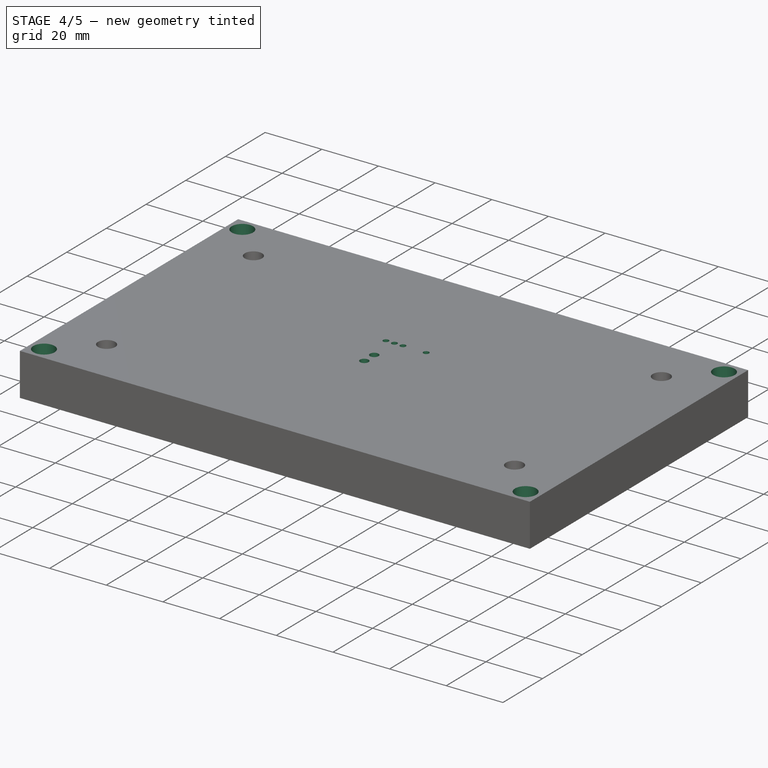
[diagram: stage 4 of 5 — iso view after this stage's code; geometry added in this stage tinted green]
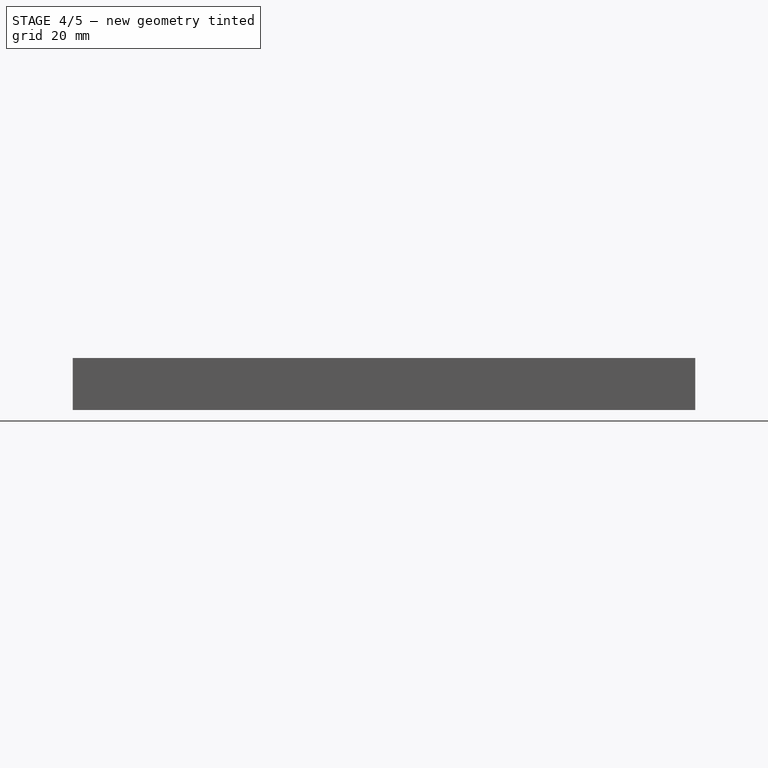
[diagram: stage 4 of 5 — front view after this stage's code; geometry added in this stage tinted green]
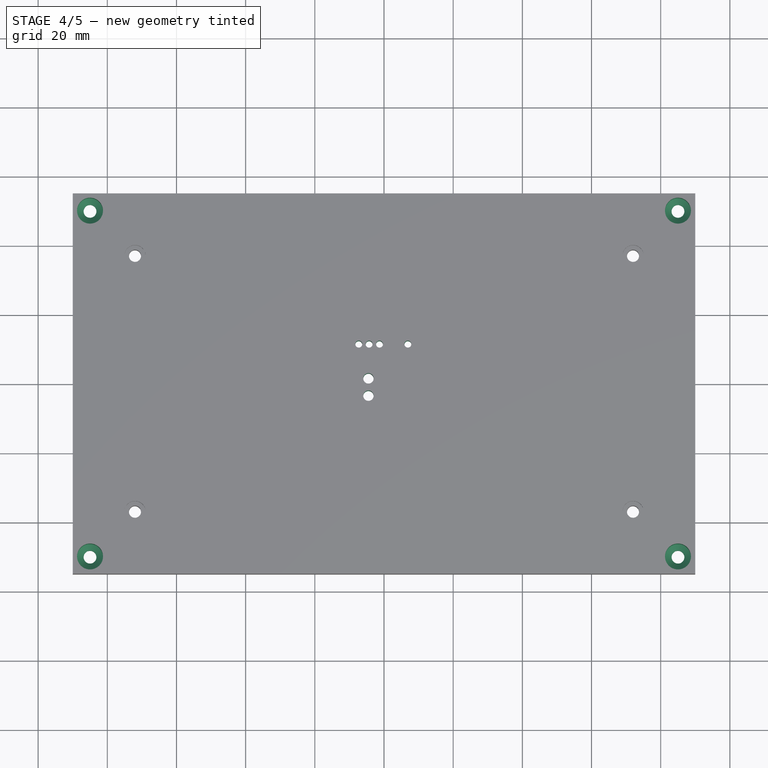
[diagram: stage 4 of 5 — top view after this stage's code; geometry added in this stage tinted green]
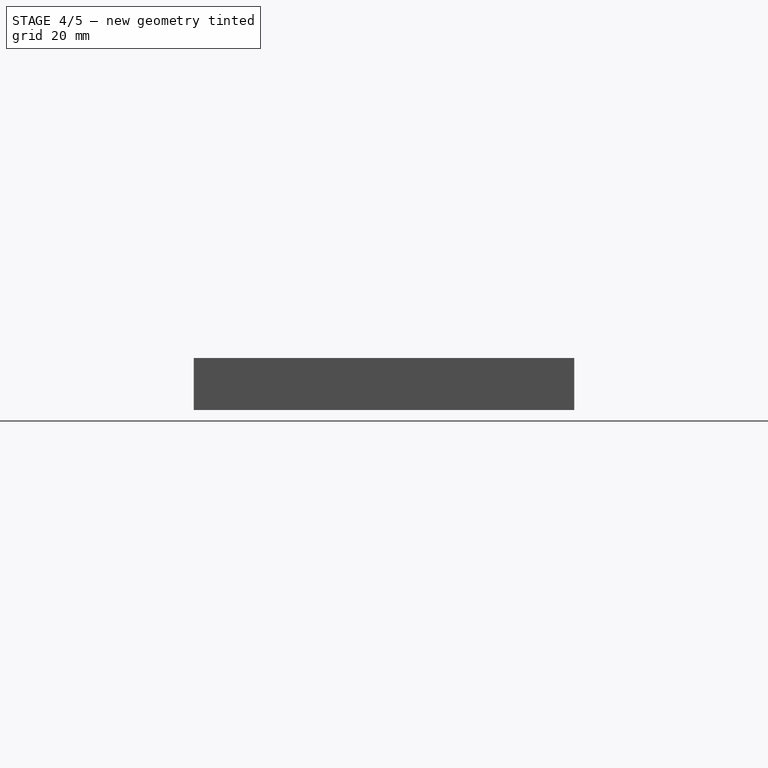
[diagram: stage 4 of 5 — right view after this stage's code; geometry added in this stage tinted green]
FEATURE [PartDesign::SubShapeBinder] Binder002
  BindCopyOnChange = 0
  BindMode = 0
  ClaimChildren = false
  Context = -> Part001 [Body003.Binder002.]
  Fuse = false
  MakeFace = true
  OffsetFill = false
  OffsetIntersection = false
  OffsetJoinType = 0
  OffsetOpenResult = false
  PartialLoad = false
  Refine = true
  Relative = true
  Support = -> [Body002[Pocket010.Face1]]
  _Version = 2
FEATURE [Sketcher::SketchObject] Sketch026
  ArcFitTolerance = 1e-06
  AttachmentSupport = -> [Pocket011]
  ExternalGeometry = -> [Binder001,Pocket011,Binder002]
  FullyConstrained = true
  MakeInternals = false
  MapMode = 5
  Placement = pos=(0,0,0) rot=(1,0,0;3.14159rad)
  sketch-geometry (16):
    g0: LineSegment StartX=-140 StartY=23.25 StartZ=0 EndX=-140 EndY=-23.25 EndZ=0
    g1: LineSegment StartX=-140 StartY=-23.25 StartZ=0 EndX=-118.5 EndY=-23.25 EndZ=0
    g2: LineSegment StartX=-118.5 StartY=23.25 StartZ=0 EndX=-140 EndY=23.25 EndZ=0
    g3: LineSegment StartX=-118.5 StartY=23.25 StartZ=0 EndX=-118.5 EndY=6 EndZ=0
    g4: LineSegment StartX=-118.5 StartY=-6 StartZ=0 EndX=-118.5 EndY=-23.25 EndZ=0
    g5: LineSegment StartX=-118.5 StartY=-6 StartZ=0 EndX=-93.5 EndY=-6 EndZ=0
    g6: LineSegment StartX=-118.5 StartY=6 StartZ=0 EndX=-93.5 EndY=6 EndZ=0
    g7: LineSegment StartX=-93.5 StartY=6 StartZ=0 EndX=-93.5 EndY=38.5 EndZ=0
    g8: LineSegment StartX=-93.5 StartY=38.5 StartZ=0 EndX=-64.5 EndY=38.5 EndZ=0
    g9: LineSegment StartX=-64.5 StartY=38.5 StartZ=0 EndX=-64.5 EndY=-28.5 EndZ=0
    g10: LineSegment StartX=-93.5 StartY=-28.5 StartZ=0 EndX=-93.5 EndY=-6 EndZ=0
    g11: LineSegment StartX=-93.5 StartY=-28.5 StartZ=0 EndX=-90 EndY=-28.5 EndZ=0
    g12: LineSegment StartX=-90 StartY=-28.5 StartZ=0 EndX=-90 EndY=-55 EndZ=0
    g13: LineSegment StartX=-90 StartY=-55 StartZ=0 EndX=-68 EndY=-55 EndZ=0
    g14: LineSegment StartX=-68 StartY=-55 StartZ=0 EndX=-68 EndY=-28.5 EndZ=0
    g15: LineSegment StartX=-68 StartY=-28.5 StartZ=0 EndX=-64.5 EndY=-28.5 EndZ=0
  constraints (36):
    c: Coincident(g0,g1)
    c: Coincident(g2,g0)
    c: Vertical(g0)
    c: Horizontal(g1)
    c: Horizontal(g2)
    c: Coincident(g0,g-3)
    c: Coincident(g1,g-4)
    c: Coincident(g3,g2)
    c: Coincident(g3,g-7)
    c: Vertical(g3)
    c: Coincident(g4,g-8)
    c: Coincident(g4,g1)
    c: Coincident(g5,g4)
    c: Coincident(g5,g-8)
    c: Coincident(g6,g3)
    c: Coincident(g6,g-7)
    c: Coincident(g7,g6)
    c: Coincident(g7,g-6)
    c: Coincident(g8,g7)
    c: Coincident(g8,g-6)
    c: Coincident(g9,g8)
    c: Coincident(g9,g-5)
    c: Coincident(g10,g5)
    c: Coincident(g11,g10)
    c: Coincident(g11,g-10)
    c: Coincident(g12,g11)
    c: PointOnObject(g12,g-9)
    c: Vertical(g12)
    c: Coincident(g13,g12)
    c: PointOnObject(g13,g-9)
    c: Coincident(g14,g13)
    c: Coincident(g14,g-10)
    c: Vertical(g14)
    c: Coincident(g15,g14)
    c: Coincident(g15,g9)
    c: Coincident(g10,g-5)
FEATURE [PartDesign::Pocket] Pocket012
  BaseFeature = -> Pocket011
  Direction = (0,0,1)
  Length = 3.5
  Length2 = 5
  Profile = -> Sketch026
  ReferenceAxis = -> Sketch026 [N_Axis]
  Refine = true
  Suppressed = false
  Type = 0
FEATURE [Sketcher::SketchObject] Sketch027
  ArcFitTolerance = 1e-06
  AttachmentSupport = -> [Pocket012]
  ExternalGeometry = -> [Pocket012]
  FullyConstrained = true
  MakeInternals = false
  MapMode = 5
  Placement = pos=(0,0,0) rot=(1,0,0;3.14159rad)
  sketch-geometry (4):
    g0: LineSegment StartX=-92 StartY=-29.5 StartZ=0 EndX=-92 EndY=-55 EndZ=0
    g1: LineSegment StartX=-92 StartY=-55 StartZ=0 EndX=-66 EndY=-55 EndZ=0
    g2: LineSegment StartX=-66 StartY=-55 StartZ=0 EndX=-66 EndY=-29.5 EndZ=0
    g3: LineSegment StartX=-66 StartY=-29.5 StartZ=0 EndX=-92 EndY=-29.5 EndZ=0
  constraints (12):
    c: Coincident(g0,g1)
    c: Coincident(g1,g2)
    c: Coincident(g2,g3)
    c: Coincident(g3,g0)
    c: Vertical(g0)
    c: Vertical(g2)
    c: Horizontal(g1)
    c: Horizontal(g3)
    c: PointOnObject(g1,g-3)
    c: DistanceX(g0,g-5) = 2
    c: DistanceX(g-4,g2) = 2
    c: Distance(g-5,g3) = 1
FEATURE [PartDesign::Pocket] Pocket013
  BaseFeature = -> Pocket012
  Direction = (0,0,1)
  Length = 5
  Length2 = 5
  Profile = -> Sketch027
  ReferenceAxis = -> Sketch027 [N_Axis]
  Refine = true
  Suppressed = false
  Type = 0
FEATURE [Sketcher::SketchObject] Sketch028
  ArcFitTolerance = 1e-06
  AttachmentSupport = -> [Pocket013]
  ExternalGeometry = -> [Pocket013]
  FullyConstrained = true
  MakeInternals = false
  MapMode = 5
  Placement = pos=(0,0,3.5) rot=(1,0,0;3.14159rad)
  sketch-geometry (9):
    g0: LineSegment [constr] StartX=-93.5 StartY=-11.4 StartZ=0 EndX=-64.5 EndY=-11.4 EndZ=0
    g1: Circle CenterX=-87.3 CenterY=-11.4 CenterZ=0 NormalX=0 NormalY=0 NormalZ=1 AngleXU=0 Radius=1
    g2: Circle CenterX=-84.3 CenterY=-11.4 CenterZ=0 NormalX=0 NormalY=0 NormalZ=1 AngleXU=0 Radius=1
    g3: Circle CenterX=-81.3 CenterY=-11.4 CenterZ=0 NormalX=0 NormalY=0 NormalZ=1 AngleXU=0 Radius=1
    g4: Circle CenterX=-73.1 CenterY=-11.4 CenterZ=0 NormalX=0 NormalY=0 NormalZ=1 AngleXU=0 Radius=1
    g5: LineSegment [constr] StartX=-84.5 StartY=38.5 StartZ=0 EndX=-84.5 EndY=-28.5 EndZ=0
    g6: Circle CenterX=-84.5 CenterY=-1.5 CenterZ=0 NormalX=0 NormalY=0 NormalZ=1 AngleXU=0 Radius=1.5
    g7: Circle CenterX=-84.5 CenterY=3.5 CenterZ=0 NormalX=0 NormalY=0 NormalZ=1 AngleXU=0 Radius=1.5
    g8: LineSegment [constr] StartX=-90 StartY=-28.5 StartZ=0 EndX=-68 EndY=-28.5 EndZ=0
  constraints (27):
    c: PointOnObject(g0,g-5)
    c: PointOnObject(g0,g-3)
    c: Horizontal(g0)
    c: Distance(g-4,g0) = 17.1
    c: PointOnObject(g1,g0)
    c: PointOnObject(g4,g0)
    c: Distance(g4,g-3) = 8.6
    c: Equal(g4,g3)
    c: Equal(g3,g2)
    c: Equal(g2,g1)
    c: Diameter(g4) = 2
    c: PointOnObject(g3,g0)
    c: Distance(g3,g-3) = 16.8
    c: Distance(g1,g-3) = 22.8
    c: Symmetric(g1,g3,g2)
    c: PointOnObject(g5,g-6)
    c: PointOnObject(g5,g-4)
    c: Vertical(g5)
    c: Distance(g5,g-3) = 20
    c: PointOnObject(g6,g5)
    c: Equal(g6,g7)
    c: Diameter(g7) = 3
    c: Coincident(g8,g-7)
    c: Coincident(g8,g-4)
    c: Distance(g6,g8) = 27
    c: Distance(g7,g8) = 32
    c: PointOnObject(g7,g5)
FEATURE [PartDesign::Pocket] Pocket014
  BaseFeature = -> Pocket013
  Direction = (0,0,1)
  Length = 5
  Length2 = 5
  Profile = -> Sketch028
  ReferenceAxis = -> Sketch028 [N_Axis]
  Refine = true
  Suppressed = false
  Type = 1
FEATURE [Sketcher::SketchObject] Sketch029
  ArcFitTolerance = 1e-06
  AttachmentSupport = -> [Pocket014]
  ExternalGeometry = -> [Pocket014]
  FullyConstrained = true
  MakeInternals = false
  MapMode = 5
  Placement = pos=(0,0,15) rot=(0,0,1;0rad)
  sketch-geometry (12):
    g0: LineSegment [constr] StartX=-165 StartY=50 StartZ=0 EndX=-165 EndY=-50 EndZ=0
    g1: LineSegment [constr] StartX=-165 StartY=-50 StartZ=0 EndX=5 EndY=-50 EndZ=0
    g2: LineSegment [constr] StartX=5 StartY=-50 StartZ=0 EndX=5 EndY=50 EndZ=0
    g3: LineSegment [constr] StartX=5 StartY=50 StartZ=0 EndX=-165 EndY=50 EndZ=0
    g4: LineSegment [constr] StartX=-165 StartY=50 StartZ=0 EndX=-170 EndY=50 EndZ=0
    g5: LineSegment [constr] StartX=-165 StartY=50 StartZ=0 EndX=-165 EndY=55 EndZ=0
    g6: LineSegment [constr] StartX=5 StartY=-50 StartZ=0 EndX=5 EndY=-55 EndZ=0
    g7: LineSegment [constr] StartX=5 StartY=-50 StartZ=0 EndX=10 EndY=-50 EndZ=0
    g8: Circle CenterX=-165 CenterY=50 CenterZ=0 NormalX=0 NormalY=0 NormalZ=1 AngleXU=0 Radius=1.75
    g9: Circle CenterX=5 CenterY=50 CenterZ=0 NormalX=0 NormalY=0 NormalZ=1 AngleXU=0 Radius=1.75
    g10: Circle CenterX=5 CenterY=-50 CenterZ=0 NormalX=0 NormalY=0 NormalZ=1 AngleXU=0 Radius=1.75
    g11: Circle CenterX=-165 CenterY=-50 CenterZ=0 NormalX=0 NormalY=0 NormalZ=1 AngleXU=0 Radius=1.75
  constraints (32):
    c: Coincident(g0,g1)
    c: Coincident(g1,g2)
    c: Coincident(g2,g3)
    c: Coincident(g3,g0)
    c: Vertical(g0)
    c: Vertical(g2)
    c: Horizontal(g1)
    c: Horizontal(g3)
    c: Coincident(g4,g0)
    c: PointOnObject(g4,g-5)
    c: Horizontal(g4)
    c: Coincident(g5,g0)
    c: PointOnObject(g5,g-3)
    c: Vertical(g5)
    c: Coincident(g6,g1)
    c: PointOnObject(g6,g-4)
    c: Vertical(g6)
    c: Coincident(g7,g1)
    c: PointOnObject(g7,g-6)
    c: Horizontal(g7)
    c: Equal(g7,g6)
    c: Equal(g6,g5)
    c: Equal(g5,g4)
    c: Distance(g5,g5) = 5
    c: Coincident(g8,g0)
    c: Coincident(g9,g2)
    c: Coincident(g10,g1)
    c: Coincident(g11,g0)
    c: Equal(g8,g9)
    c: Equal(g9,g10)
    c: Equal(g10,g11)
    c: Diameter(g8) = 3.5
FEATURE [PartDesign::Hole] Hole007
  BaseFeature = -> Pocket014
  CustomThreadClearance = 0
  Depth = 25
  DepthType = 0
  Diameter = 3.7
  DrillForDepth = false
  DrillPoint = 1
  DrillPointAngle = 118
  HoleCutCountersinkAngle = 90
  HoleCutCustomValues = false
  HoleCutDepth = 10
  HoleCutDiameter = 7.5
  HoleCutType = 3
  ModelThread = false
  Profile = -> Sketch029
  Refine = true
  Suppressed = false
  Tapered = false
  TaperedAngle = 90
  ThreadClass = 0
  ThreadDepth = 25
  ThreadDepthType = 0
  ThreadDirection = 0
  ThreadFit = 0
  ThreadSize = 0
  ThreadType = 0
  Threaded = false
  UseCustomThreadClearance = false
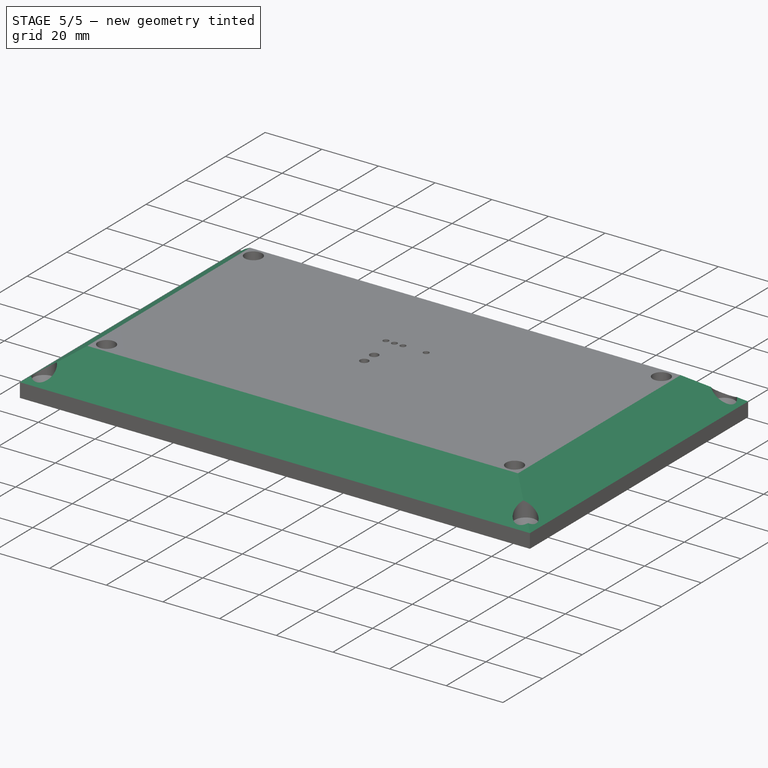
[diagram: stage 5 of 5 — iso view after this stage's code; geometry added in this stage tinted green]
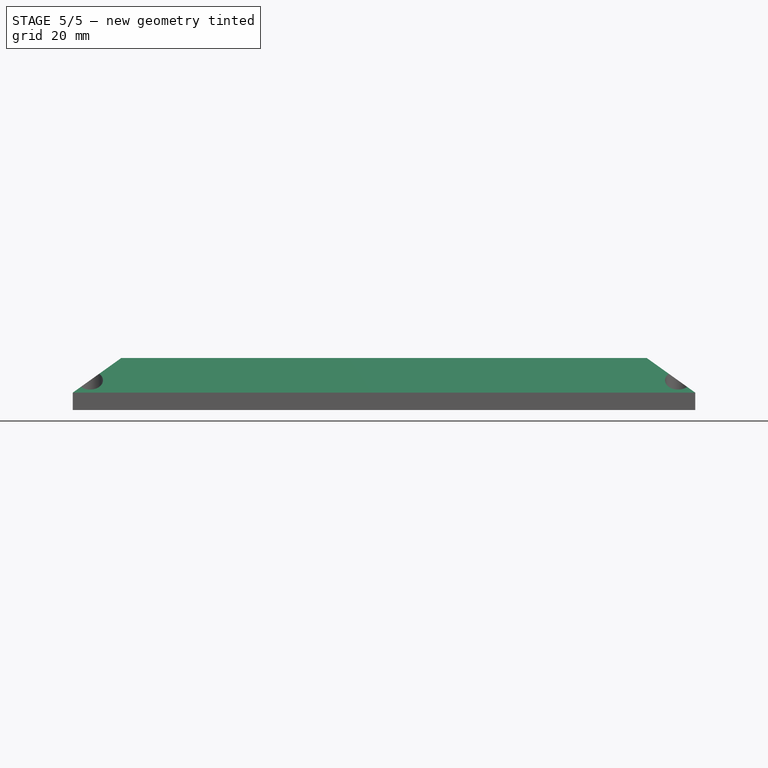
[diagram: stage 5 of 5 — front view after this stage's code; geometry added in this stage tinted green]
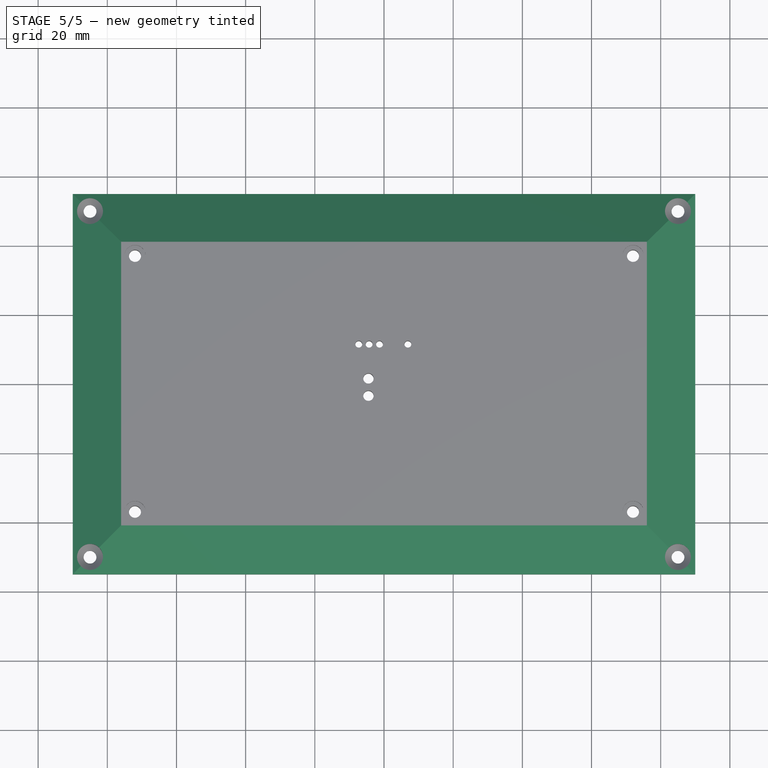
[diagram: stage 5 of 5 — top view after this stage's code; geometry added in this stage tinted green]
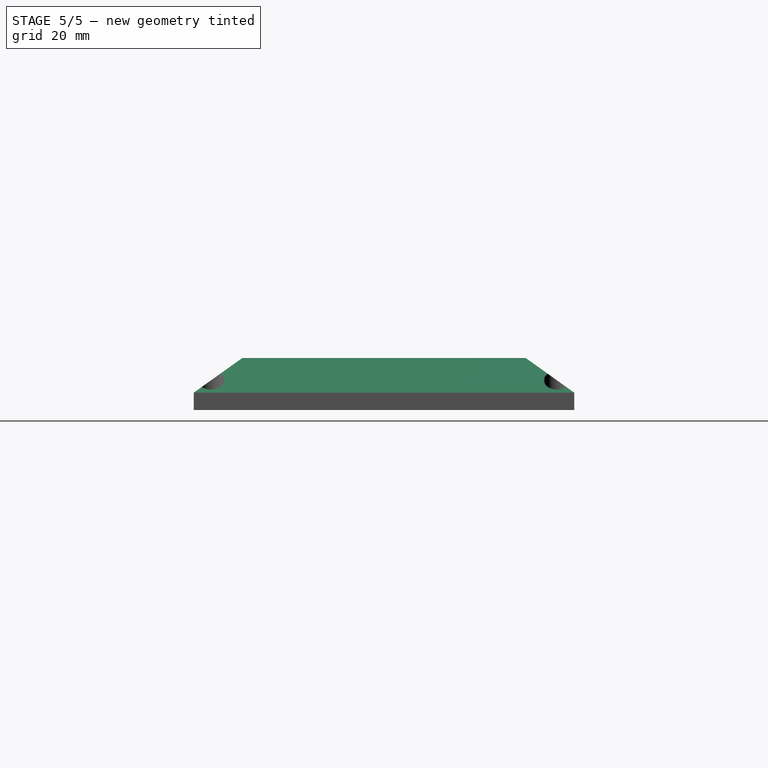
[diagram: stage 5 of 5 — right view after this stage's code; geometry added in this stage tinted green]
FEATURE [Sketcher::SketchObject] Sketch030
  ArcFitTolerance = 1e-06
  AttachmentSupport = -> [Pocket011]
  ExternalGeometry = -> [Pocket011]
  FullyConstrained = true
  MakeInternals = false
  MapMode = 5
  Placement = pos=(0,0,11.6) rot=(0,0,1;0rad)
  sketch-geometry (16):
    g0: LineSegment StartX=-153.75 StartY=38.75 StartZ=0 EndX=-153.75 EndY=35.25 EndZ=0
    g1: LineSegment StartX=-153.75 StartY=35.25 StartZ=0 EndX=-150.25 EndY=35.25 EndZ=0
    g2: LineSegment StartX=-150.25 StartY=35.25 StartZ=0 EndX=-150.25 EndY=38.75 EndZ=0
    g3: LineSegment StartX=-150.25 StartY=38.75 StartZ=0 EndX=-153.75 EndY=38.75 EndZ=0
    g4: LineSegment StartX=-9.75 StartY=38.75 StartZ=0 EndX=-9.75 EndY=35.25 EndZ=0
    g5: LineSegment StartX=-9.75 StartY=35.25 StartZ=0 EndX=-6.25 EndY=35.25 EndZ=0
    g6: LineSegment StartX=-6.25 StartY=35.25 StartZ=0 EndX=-6.25 EndY=38.75 EndZ=0
    g7: LineSegment StartX=-6.25 StartY=38.75 StartZ=0 EndX=-9.75 EndY=38.75 EndZ=0
    g8: LineSegment StartX=-9.75 StartY=-35.25 StartZ=0 EndX=-9.75 EndY=-38.75 EndZ=0
    g9: LineSegment StartX=-9.75 StartY=-38.75 StartZ=0 EndX=-6.25 EndY=-38.75 EndZ=0
    g10: LineSegment StartX=-6.25 StartY=-38.75 StartZ=0 EndX=-6.25 EndY=-35.25 EndZ=0
    g11: LineSegment StartX=-6.25 StartY=-35.25 StartZ=0 EndX=-9.75 EndY=-35.25 EndZ=0
    g12: LineSegment StartX=-153.75 StartY=-35.25 StartZ=0 EndX=-153.75 EndY=-38.75 EndZ=0
    g13: LineSegment StartX=-153.75 StartY=-38.75 StartZ=0 EndX=-150.25 EndY=-38.75 EndZ=0
    g14: LineSegment StartX=-150.25 StartY=-38.75 StartZ=0 EndX=-150.25 EndY=-35.25 EndZ=0
    g15: LineSegment StartX=-150.25 StartY=-35.25 StartZ=0 EndX=-153.75 EndY=-35.25 EndZ=0
  constraints (48):
    c: Coincident(g0,g1)
    c: Coincident(g1,g2)
    c: Coincident(g2,g3)
    c: Coincident(g3,g0)
    c: Vertical(g0)
    c: Vertical(g2)
    c: Horizontal(g1)
    c: Horizontal(g3)
    c: PointOnObject(g0,g-5)
    c: PointOnObject(g1,g-6)
    c: Tangent(g3,g-3)
    c: Tangent(g1,g-4)
    c: Coincident(g4,g5)
    c: Coincident(g5,g6)
    c: Coincident(g6,g7)
    c: Coincident(g7,g4)
    c: Vertical(g4)
    c: Vertical(g6)
    c: Horizontal(g5)
    c: Horizontal(g7)
    c: PointOnObject(g4,g-9)
    c: PointOnObject(g5,g-10)
    c: Tangent(g5,g-8)
    c: Tangent(g7,g-7)
    c: Coincident(g8,g9)
    c: Coincident(g9,g10)
    c: Coincident(g10,g11)
    c: Coincident(g11,g8)
    c: Vertical(g8)
    c: Vertical(g10)
    c: Horizontal(g9)
    c: Horizontal(g11)
    c: PointOnObject(g8,g-13)
    c: PointOnObject(g9,g-14)
    c: Tangent(g11,g-11)
    c: Tangent(g-12,g9)
    c: Coincident(g12,g13)
    c: Coincident(g13,g14)
    c: Coincident(g14,g15)
    c: Coincident(g15,g12)
    c: Vertical(g12)
    c: Vertical(g14)
    c: Horizontal(g13)
    c: Horizontal(g15)
    c: PointOnObject(g12,g-17)
    c: PointOnObject(g13,g-18)
    c: Tangent(g-15,g15)
    c: Tangent(g-16,g13)
FEATURE [PartDesign::Pocket] Pocket015
  BaseFeature = -> Hole007
  Direction = (0,0,-1)
  Length = 0.2
  Length2 = 5
  Profile = -> Sketch030
  ReferenceAxis = -> Sketch030 [N_Axis]
  Refine = true
  Suppressed = false
  Type = 0
FEATURE [Sketcher::SketchObject] Sketch
  ArcFitTolerance = 1e-06
  AttachmentSupport = -> [Pocket015]
  ExternalGeometry = -> [Pocket015]
  FullyConstrained = true
  MakeInternals = false
  MapMode = 5
  Placement = pos=(0,-55,0) rot=(1,0,0;1.5708rad)
  sketch-geometry (6):
    g0: LineSegment StartX=-170 StartY=5 StartZ=0 EndX=-156 EndY=15 EndZ=0
    g1: LineSegment StartX=-170 StartY=5 StartZ=0 EndX=-170 EndY=15 EndZ=0
    g2: LineSegment StartX=-170 StartY=15 StartZ=0 EndX=-156 EndY=15 EndZ=0
    g3: LineSegment StartX=10 StartY=15 StartZ=0 EndX=10 EndY=5 EndZ=0
    g4: LineSegment StartX=10 StartY=5 StartZ=0 EndX=-4 EndY=15 EndZ=0
    g5: LineSegment StartX=-4 StartY=15 StartZ=0 EndX=10 EndY=15 EndZ=0
  constraints (16):
    c: PointOnObject(g0,g-3)
    c: PointOnObject(g0,g-4)
    c: Distance(g-4,g0) = 10
    c: Coincident(g1,g0)
    c: Coincident(g1,g-4)
    c: Coincident(g2,g1)
    c: Coincident(g2,g0)
    c: DistanceX(g2,g2) = 14
    c: Coincident(g3,g-4)
    c: Vertical(g3)
    c: Coincident(g4,g3)
    c: PointOnObject(g4,g-4)
    c: Coincident(g5,g4)
    c: Coincident(g5,g3)
    c: Equal(g2,g5)
    c: Equal(g3,g1)
FEATURE [PartDesign::Pocket] Pocket
  BaseFeature = -> Pocket015
  Direction = (0,1,-2e-16)
  Length = 5
  Length2 = 5
  Profile = -> Sketch
  ReferenceAxis = -> Sketch [N_Axis]
  Refine = true
  Suppressed = false
  Type = 1
FEATURE [Sketcher::SketchObject] Sketch032
  ArcFitTolerance = 1e-06
  AttachmentSupport = -> [Pocket]
  ExternalGeometry = -> [Pocket]
  FullyConstrained = true
  MakeInternals = false
  MapMode = 5
  Placement = pos=(10,0,0) rot=(0.57735,0.57735,0.57735;2.0944rad)
  sketch-geometry (6):
    g0: LineSegment StartX=-55 StartY=5 StartZ=0 EndX=-55 EndY=15 EndZ=0
    g1: LineSegment StartX=-55 StartY=15 StartZ=0 EndX=-41 EndY=15 EndZ=0
    g2: LineSegment StartX=-41 StartY=15 StartZ=0 EndX=-55 EndY=5 EndZ=0
    g3: LineSegment StartX=55 StartY=15 StartZ=0 EndX=55 EndY=5 EndZ=0
    g4: LineSegment StartX=55 StartY=15 StartZ=0 EndX=41 EndY=15 EndZ=0
    g5: LineSegment StartX=41 StartY=15 StartZ=0 EndX=55 EndY=5 EndZ=0
  constraints (14):
    c: Coincident(g0,g-3)
    c: Coincident(g0,g-3)
    c: Coincident(g1,g0)
    c: PointOnObject(g1,g-5)
    c: Coincident(g2,g1)
    c: Coincident(g2,g0)
    c: Coincident(g3,g-5)
    c: Coincident(g3,g-4)
    c: Coincident(g4,g3)
    c: PointOnObject(g4,g-5)
    c: Coincident(g5,g4)
    c: Coincident(g5,g3)
    c: Equal(g4,g1)
    c: DistanceX(g1,g1) = 14
FEATURE [PartDesign::Pocket] Pocket017
  BaseFeature = -> Pocket
  Direction = (-1,0,0)
  Length = 5
  Length2 = 5
  Profile = -> Sketch032
  ReferenceAxis = -> Sketch032 [N_Axis]
  Refine = true
  Suppressed = false
  Type = 1
FEATURE [Sketcher::SketchObject] Sketch036
  ArcFitTolerance = 1e-06
  AttachmentSupport = -> [Pocket017]
  ExternalGeometry = -> [Pocket017]
  FullyConstrained = true
  MakeInternals = false
  MapMode = 5
  Placement = pos=(0,0,3.5) rot=(1,0,0;3.14159rad)
  sketch-geometry (12):
    g0: LineSegment StartX=-140 StartY=-23.25 StartZ=0 EndX=-140 EndY=-20.25 EndZ=0
    g1: LineSegment StartX=-140 StartY=-23.25 StartZ=0 EndX=-137 EndY=-23.25 EndZ=0
    g2: LineSegment StartX=-118.5 StartY=-23.25 StartZ=0 EndX=-121.5 EndY=-23.25 EndZ=0
    g3: LineSegment StartX=-118.5 StartY=-23.25 StartZ=0 EndX=-118.5 EndY=-20.25 EndZ=0
    g4: LineSegment StartX=-140 StartY=23.25 StartZ=0 EndX=-140 EndY=20.25 EndZ=0
    g5: LineSegment StartX=-140 StartY=23.25 StartZ=0 EndX=-137 EndY=23.25 EndZ=0
    g6: LineSegment StartX=-118.5 StartY=23.25 StartZ=0 EndX=-121.5 EndY=23.25 EndZ=0
    g7: LineSegment StartX=-118.5 StartY=23.25 StartZ=0 EndX=-118.5 EndY=20.25 EndZ=0
    g8: ArcOfCircle CenterX=-140 CenterY=23.25 CenterZ=0 NormalX=0 NormalY=0 NormalZ=1 AngleXU=0 Radius=3 StartAngle=4.71239 EndAngle=6.28319
    g9: ArcOfCircle CenterX=-118.5 CenterY=23.25 CenterZ=0 NormalX=0 NormalY=0 NormalZ=1 AngleXU=0 Radius=3 StartAngle=3.14159 EndAngle=4.71239
    g10: ArcOfCircle CenterX=-118.5 CenterY=-23.25 CenterZ=0 NormalX=0 NormalY=0 NormalZ=1 AngleXU=0 Radius=3 StartAngle=1.5708 EndAngle=3.14159
    g11: ArcOfCircle CenterX=-140 CenterY=-23.25 CenterZ=0 NormalX=0 NormalY=0 NormalZ=1 AngleXU=0 Radius=3 StartAngle=-9e-16 EndAngle=1.5708
  constraints (32):
    c: Coincident(g0,g-6)
    c: PointOnObject(g0,g-5)
    c: Coincident(g1,g0)
    c: PointOnObject(g1,g-6)
    c: Coincident(g2,g-7)
    c: PointOnObject(g2,g-6)
    c: Coincident(g3,g2)
    c: PointOnObject(g3,g-7)
    c: Coincident(g4,g-5)
    c: PointOnObject(g4,g-5)
    c: Coincident(g5,g4)
    c: PointOnObject(g5,g-4)
    c: Coincident(g6,g-4)
    c: PointOnObject(g6,g-4)
    c: Coincident(g7,g6)
    c: PointOnObject(g7,g-3)
    c: Coincident(g8,g4)
    c: Coincident(g8,g4)
    c: Coincident(g8,g5)
    c: Coincident(g9,g6)
    c: Coincident(g9,g6)
    c: Coincident(g9,g7)
    c: Coincident(g10,g2)
    c: Coincident(g10,g2)
    c: Coincident(g10,g3)
    c: Coincident(g11,g0)
    c: Coincident(g11,g0)
    c: Coincident(g11,g1)
    c: Equal(g8,g9)
    c: Equal(g9,g11)
    c: Equal(g11,g10)
    c: Radius(g8) = 3
FEATURE [PartDesign::Pad] Pad006
  BaseFeature = -> Pocket017
  Direction = (0,0,-1)
  Length = 10
  Length2 = 10
  Offset = 0.2
  Profile = -> Sketch036
  ReferenceAxis = -> Sketch036 [N_Axis]
  Refine = true
  Suppressed = false
  Type = 3
  UpToFace = -> Pocket017 [Face29]
FEATURE [Sketcher::SketchObject] Sketch037
  ArcFitTolerance = 1e-06
  AttachmentSupport = -> [Pad006]
  ExternalGeometry = -> [Pad006]
  FullyConstrained = true
  MakeInternals = false
  MapMode = 5
  Placement = pos=(0,0,3.5) rot=(1,0,0;3.14159rad)
  sketch-geometry (4):
    g0: LineSegment StartX=-93.5 StartY=6 StartZ=0 EndX=-123.5 EndY=6 EndZ=0
    g1: LineSegment StartX=-123.5 StartY=6 StartZ=0 EndX=-123.5 EndY=-6 EndZ=0
    g2: LineSegment StartX=-123.5 StartY=-6 StartZ=0 EndX=-93.5 EndY=-6 EndZ=0
    g3: LineSegment StartX=-93.5 StartY=-6 StartZ=0 EndX=-93.5 EndY=6 EndZ=0
  constraints (11):
    c: Coincident(g0,g1)
    c: Coincident(g1,g2)
    c: Coincident(g2,g3)
    c: Coincident(g3,g0)
    c: Horizontal(g2)
    c: Vertical(g1)
    c: Vertical(g3)
    c: PointOnObject(g2,g-4)
    c: Coincident(g0,g-3)
    c: PointOnObject(g-3,g0)
    c: DistanceX(g0,g-3) = 5
FEATURE [PartDesign::Pocket] Pocket020
  BaseFeature = -> Pad006
  Direction = (0,0,1)
  Length = 5
  Length2 = 5
  Profile = -> Sketch037
  ReferenceAxis = -> Sketch037 [N_Axis]
  Refine = true
  Suppressed = false
  Type = 0
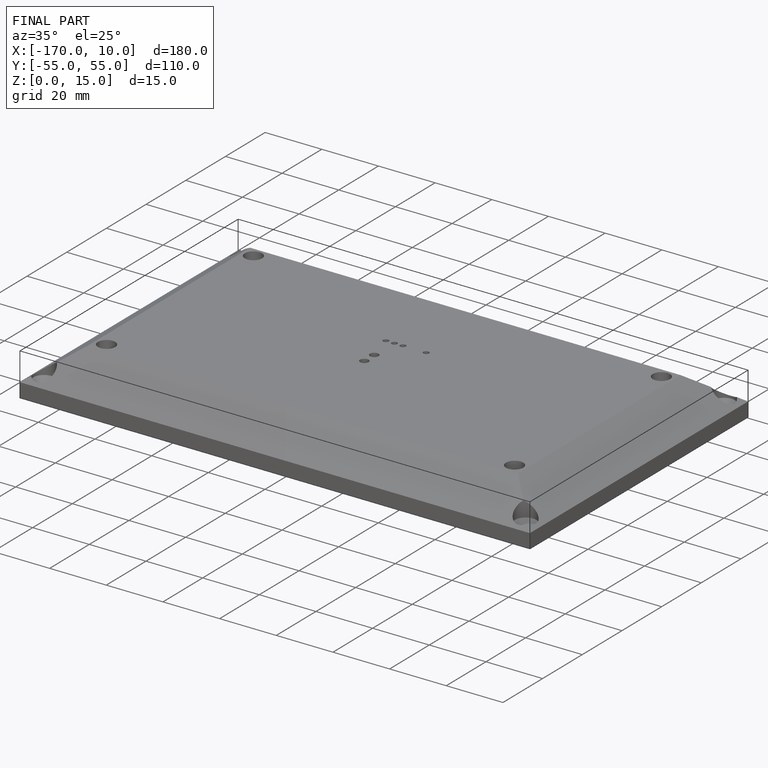
[diagram: finished part — iso view with bounding-box wireframe]
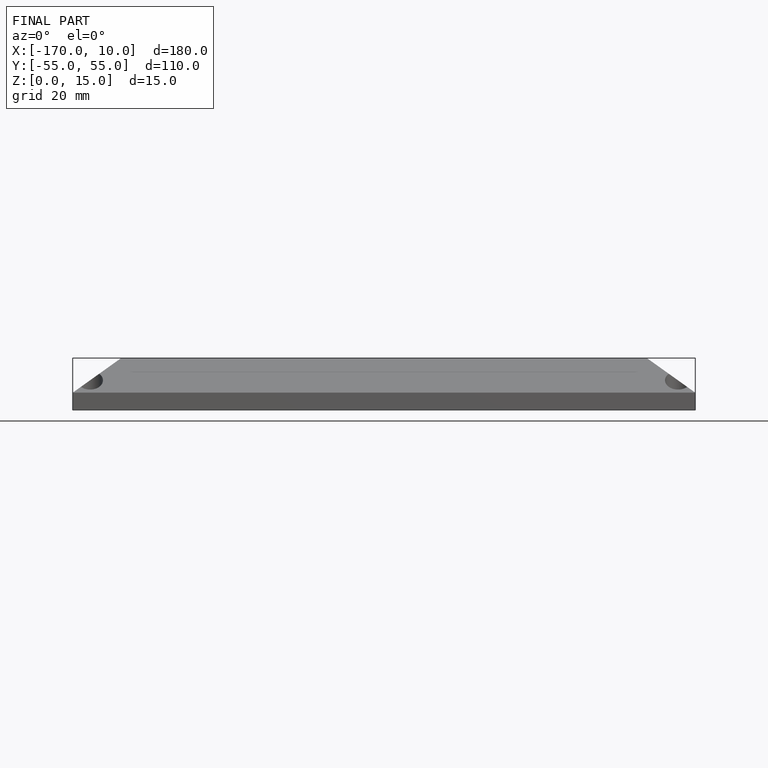
[diagram: finished part — front view with bounding-box wireframe]
